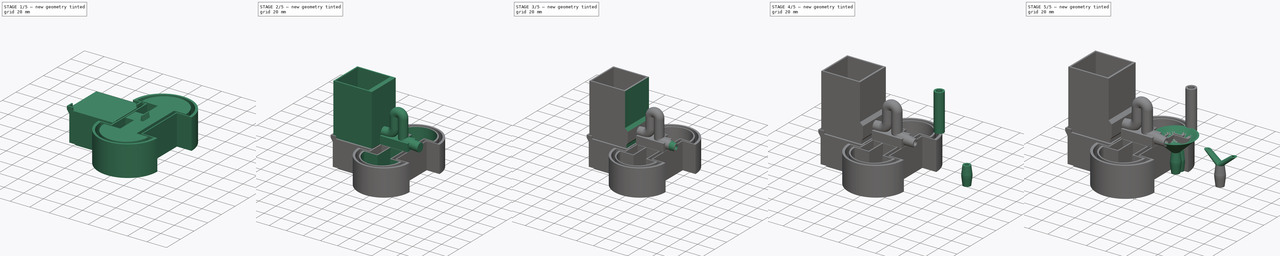
[diagram: build sequence overview — one tinted view per stage of 5, left to right]
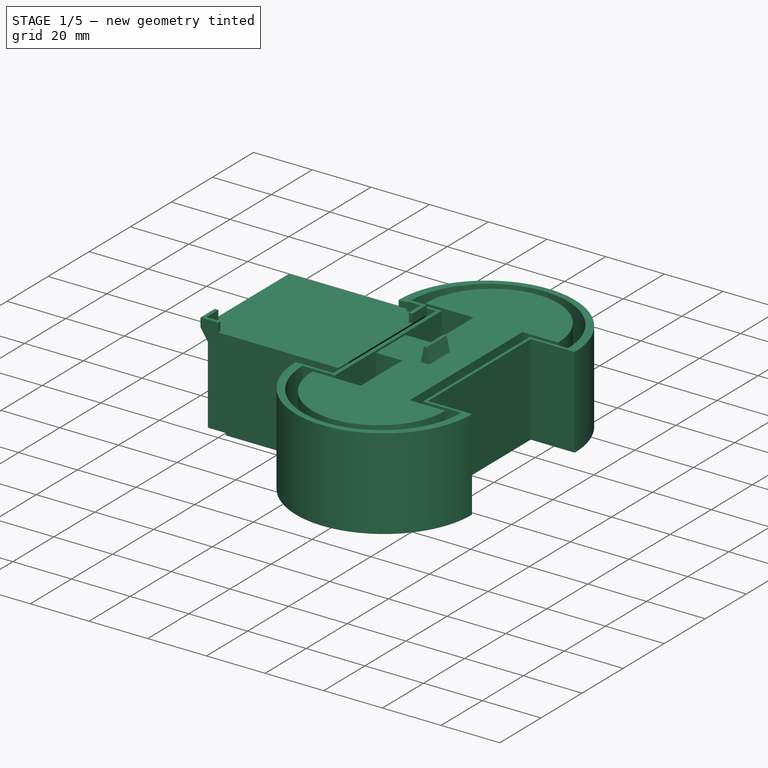
[diagram: stage 1 of 5 — iso view after this stage's code; geometry added in this stage tinted green]
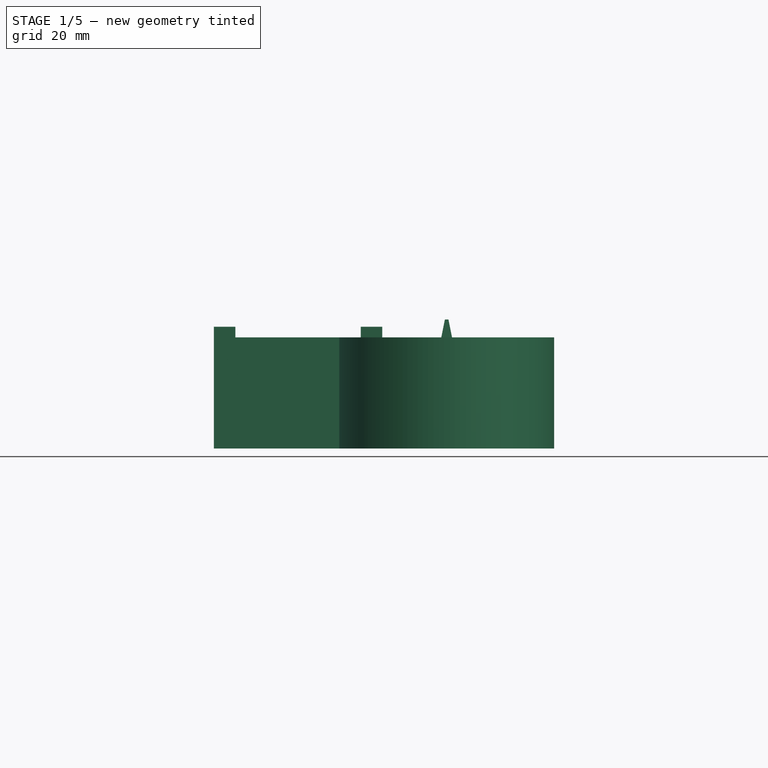
[diagram: stage 1 of 5 — front view after this stage's code; geometry added in this stage tinted green]
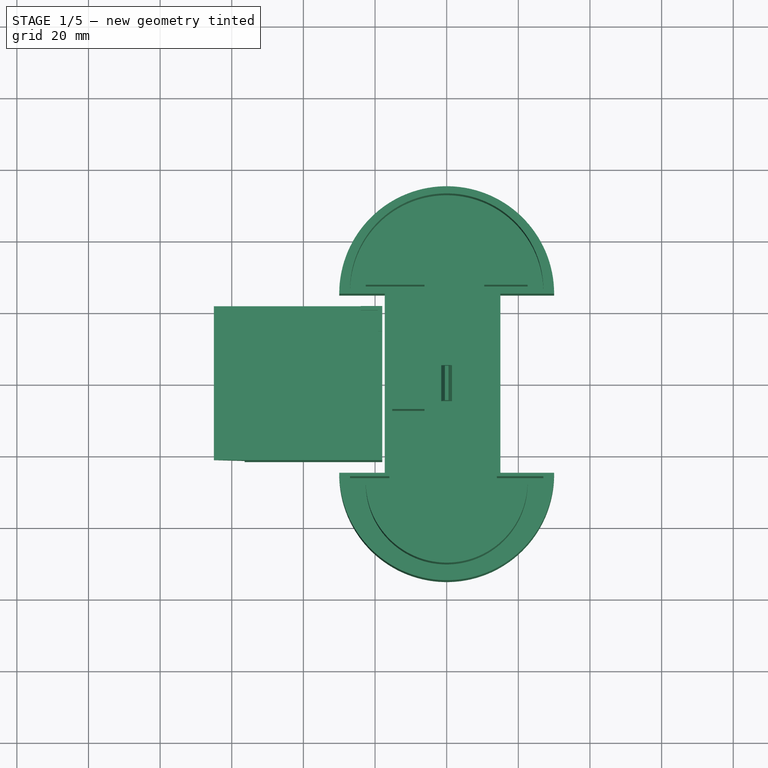
[diagram: stage 1 of 5 — top view after this stage's code; geometry added in this stage tinted green]
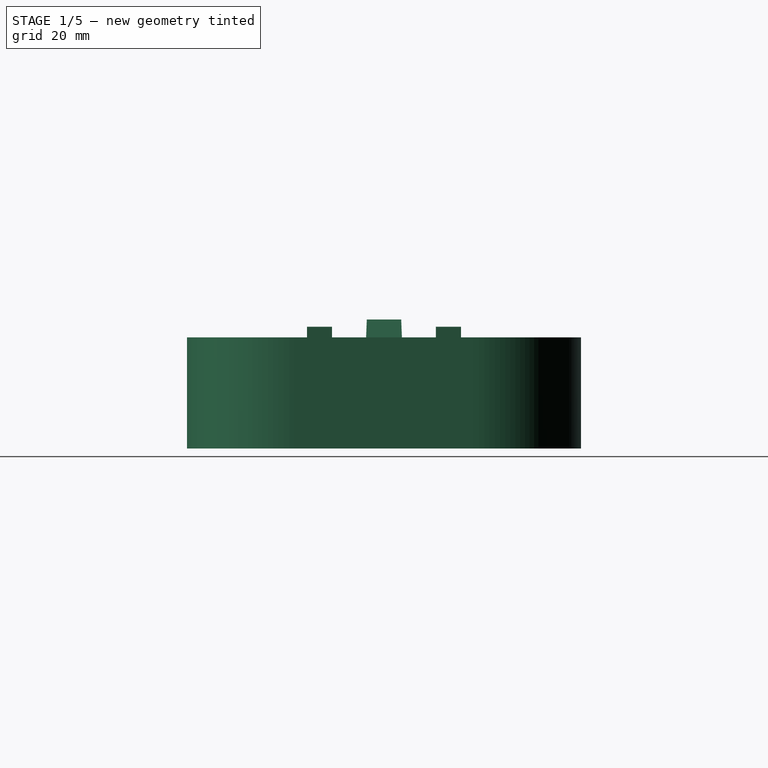
[diagram: stage 1 of 5 — right view after this stage's code; geometry added in this stage tinted green]
FCSTD DOCUMENT  (FreeCAD 0.19R23756 (Git))
Label: 3d-printable-neural-network-puzzle
License: Creative Commons Attribution-ShareAlike
LicenseURL: http://creativecommons.org/licenses/by-sa/4.0/
objects: Sketcher::SketchObject×55, TechDraw::DrawViewPart×12, PartDesign::SubtractivePipe×11, PartDesign::Pad×10, PartDesign::Body×10, PartDesign::SubtractiveLoft×7, PartDesign::AdditiveLoft×6, PartDesign::Chamfer×4, PartDesign::FeatureBase×3, PartDesign::AdditivePipe×2, TechDraw::DrawSVGTemplate×2, TechDraw::DrawPage×2, PartDesign::ShapeBinder×1, PartDesign::Hole×1
note: 151 computed .brp shape members not serialized (recipe doc carries the construction recipe); baked Part::Feature solids carry a one-line shape summary decoded from their .brp

FEATURE [PartDesign::Body] Body  label="Axon hillock"
  Group = -> [Sketch002,Sketch,Sketch006,Sketch009,Pad,AdditivePipe,Chamfer,Chamfer001,SubtractivePipe,Sketch014,Sketch015,SubtractiveLoft002]
  Origin = -> Origin
  Tip = -> SubtractiveLoft002
FEATURE [Sketcher::SketchObject] Sketch016  label="Hillock connection pad 1"
  FullyConstrained = true
  Placement = pos=(0,0,-0.2) rot=(0,0,1;0rad)
  Support = -> [XY_Plane003]
  sketch-geometry (4):
    g0: LineSegment StartX=-1.5 StartY=5 StartZ=0 EndX=1.5 EndY=5 EndZ=0
    g1: LineSegment StartX=1.5 StartY=5 StartZ=0 EndX=1.5 EndY=-5 EndZ=0
    g2: LineSegment StartX=1.5 StartY=-5 StartZ=0 EndX=-1.5 EndY=-5 EndZ=0
    g3: LineSegment StartX=-1.5 StartY=-5 StartZ=0 EndX=-1.5 EndY=5 EndZ=0
  constraints (10):
    c: Coincident(g0,g1)
    c: Coincident(g1,g2)
    c: Coincident(g2,g3)
    c: Coincident(g3,g0)
    c: Horizontal(g2)
    c: Vertical(g3)
    c: Symmetric(g0,g0,g-2)
    c: Symmetric(g1,g0,g-1)
    c: DistanceY(g1,g1) = 10
    c: DistanceX(g2,g2) = 3
FEATURE [Sketcher::SketchObject] Sketch017  label="Hillock connection pad 2"
  FullyConstrained = false
  Placement = pos=(0,0,4.8) rot=(0,0,1;0rad)
  Support = -> [XY_Plane003]
  sketch-geometry (4):
    g0: LineSegment StartX=-0.5 StartY=-4.8 StartZ=0 EndX=0.5 EndY=-4.8 EndZ=0
    g1: LineSegment StartX=0.5 StartY=-4.8 StartZ=0 EndX=0.5 EndY=4.8 EndZ=0
    g2: LineSegment StartX=0.5 StartY=4.8 StartZ=0 EndX=-0.5 EndY=4.8 EndZ=0
    g3: LineSegment StartX=-0.5 StartY=4.8 StartZ=0 EndX=-0.5 EndY=-4.8 EndZ=0
  constraints (10):
    c: Horizontal(g0)
    c: Vertical(g3)
    c: Symmetric(g1,g2,g-2)
    c: Symmetric(g1,g0,g-1)
    c: DistanceX(g0,g0) = 1
    c: DistanceY(g3,g3) = 9.6
    c: Coincident(g1,g2)
    c: Coincident(g3,g2)
    c: Coincident(g0,g3)
    c: Equal(g3,g1)
FEATURE [Sketcher::SketchObject] Sketch018  label="Container negative hillock"
  FullyConstrained = true
  MapMode = 5
  Placement = pos=(0,0,-0.2) rot=(1,0,0;3.14159rad)
  sketch-geometry (8):
    g0: LineSegment StartX=15 StartY=25 StartZ=0 EndX=15 EndY=-25 EndZ=0
    g1: LineSegment StartX=-17.3 StartY=-25 StartZ=0 EndX=-17.3 EndY=25 EndZ=0
    g2: ArcOfCircle CenterX=0 CenterY=-25 CenterZ=0 NormalX=0 NormalY=0 NormalZ=1 AngleXU=0 Radius=30 StartAngle=3.14159 EndAngle=6.28319
    g3: LineSegment StartX=-17.3 StartY=-25 StartZ=0 EndX=-30 EndY=-25 EndZ=0
    g4: LineSegment StartX=15 StartY=-25 StartZ=0 EndX=30 EndY=-25 EndZ=0
    g5: ArcOfCircle CenterX=0 CenterY=25 CenterZ=0 NormalX=0 NormalY=0 NormalZ=1 AngleXU=0 Radius=30 StartAngle=1.7456e-12 EndAngle=3.14159
    g6: LineSegment StartX=15 StartY=25 StartZ=0 EndX=30 EndY=25 EndZ=0
    g7: LineSegment StartX=-17.3 StartY=25 StartZ=0 EndX=-30 EndY=25 EndZ=0
  constraints (24):
    c: DistanceX(g1,g-1) = 17.3
    c: DistanceX(g-1,g0) = 15
    c: Symmetric(g0,g0,g-1)
    c: DistanceY(g0,g0) = 50
    c: Equal(g0,g1)
    c: Symmetric(g1,g1,g-1)
    c: PointOnObject(g2,g-2)
    c: Radius(g2) = 30
    c: Angle(g2) = 3.14159
    c: Coincident(g3,g1)
    c: Coincident(g3,g2)
    c: Perpendicular(g1,g3)
    c: Coincident(g4,g0)
    c: Coincident(g4,g2)
    c: Perpendicular(g0,g4)
    c: PointOnObject(g5,g-2)
    c: Radius(g5) = 30
    c: Angle(g5) = 3.14159
    c: Coincident(g6,g0)
    c: Coincident(g6,g5)
    c: Coincident(g7,g1)
    c: Coincident(g7,g5)
    c: Perpendicular(g0,g6)
    c: Perpendicular(g7,g1)
FEATURE [Sketcher::SketchObject] Sketch019  label="Hollow profile"
  FullyConstrained = true
  MapMode = 5
  Placement = pos=(0,0,-0.2) rot=(0,0,1;0rad)
  sketch-geometry (8):
    g0: LineSegment StartX=14 StartY=26 StartZ=0 EndX=14 EndY=-26 EndZ=0
    g1: LineSegment StartX=-16 StartY=-26 StartZ=0 EndX=-16 EndY=26 EndZ=0
    g2: ArcOfCircle CenterX=0 CenterY=26 CenterZ=0 NormalX=0 NormalY=0 NormalZ=1 AngleXU=0 Radius=27 StartAngle=0 EndAngle=3.14159
    g3: LineSegment StartX=-27 StartY=26 StartZ=0 EndX=-16 EndY=26 EndZ=0
    g4: LineSegment StartX=14 StartY=26 StartZ=0 EndX=27 EndY=26 EndZ=0
    g5: ArcOfCircle CenterX=0 CenterY=-26 CenterZ=0 NormalX=0 NormalY=0 NormalZ=1 AngleXU=0 Radius=27 StartAngle=3.14159 EndAngle=6.28319
    g6: LineSegment StartX=14 StartY=-26 StartZ=0 EndX=27 EndY=-26 EndZ=0
    g7: LineSegment StartX=-16 StartY=-26 StartZ=0 EndX=-27 EndY=-26 EndZ=0
  constraints (24):
    c: DistanceY(g1,g1) = 52
    c: DistanceX(g-1,g0) = 14
    c: DistanceX(g1,g-1) = 16
    c: Symmetric(g0,g0,g-1)
    c: Symmetric(g1,g1,g-1)
    c: Equal(g1,g0)
    c: PointOnObject(g2,g-2)
    c: Coincident(g3,g2)
    c: Coincident(g3,g1)
    c: Horizontal(g3)
    c: Coincident(g4,g0)
    c: Coincident(g4,g2)
    c: Perpendicular(g0,g4)
    c: Radius(g2) = 27
    c: Angle(g2) = 3.14159
    c: PointOnObject(g5,g-2)
    c: Coincident(g6,g0)
    c: Coincident(g6,g5)
    c: Horizontal(g6)
    c: Coincident(g7,g1)
    c: Coincident(g7,g5)
    c: Perpendicular(g7,g1)
    c: Angle(g5) = 3.14159
    c: Radius(g5) = 27
FEATURE [Sketcher::SketchObject] Sketch020  label="Hollow path"
  FullyConstrained = true
  MapMode = 5
  Placement = pos=(0,0,0) rot=(1,0,0;1.5708rad)
  Support = -> [XZ_Plane002]
  sketch-geometry (1):
    g0: LineSegment StartX=0 StartY=-0.2 StartZ=0 EndX=0 EndY=-30.2 EndZ=0
  constraints (4):
    c: PointOnObject(g0,g-2)
    c: Vertical(g0)
    c: DistanceY(g0,g-1) = 0.2
    c: DistanceY(g0,g0) = 30
FEATURE [PartDesign::Pad] Pad003  label="Container pad"
  Direction = (1,1,1)
  Length = 31
  Length2 = 100
  Placement = pos=(0,0,-0.2) rot=(1,0,0;3.14159rad)
  Profile = -> Sketch018
  Type = 0
FEATURE [PartDesign::SubtractivePipe] SubtractivePipe001  label="Hollow container sweep"
  AuxilleryCurvelinear = true
  AuxillerySpineTangent = false
  BaseFeature = -> Pad003
  Binormal = (0,0,0)
  Mode = 0
  Placement = pos=(0,0,-0.2) rot=(1,0,0;3.14159rad)
  Profile = -> Sketch019
  Spine = -> Sketch020
  SpineTangent = false
  Transformation = 0
  Transition = 0
FEATURE [Sketcher::SketchObject] Sketch022  label="Float path"
  FullyConstrained = true
  MapMode = 5
  Placement = pos=(0,0,0) rot=(1,0,0;1.5708rad)
  sketch-geometry (1):
    g0: LineSegment StartX=0 StartY=-0.2 StartZ=0 EndX=0 EndY=-29.8 EndZ=0
  constraints (4):
    c: PointOnObject(g0,g-2)
    c: Vertical(g0)
    c: DistanceY(g0,g-1) = 0.2
    c: DistanceY(g0,g0) = 29.6
FEATURE [PartDesign::AdditiveLoft] AdditiveLoft  label="Connection to hillock"
  Closed = false
  Profile = -> Sketch016
  Ruled = false
  Sections = -> [Sketch017]
FEATURE [Sketcher::SketchObject] Sketch023  label="Float profile"
  FullyConstrained = true
  MapMode = 5
  Placement = pos=(0,0,-0.2) rot=(1,0,0;3.14159rad)
  Support = -> [AdditiveLoft]
  sketch-geometry (14):
    g0: LineSegment StartX=10.5 StartY=27.5 StartZ=0 EndX=10.5 EndY=-27.5 EndZ=0
    g1: LineSegment StartX=-15.2 StartY=7.2 StartZ=0 EndX=-15.2 EndY=-7.2 EndZ=0
    g2: LineSegment StartX=-15.2 StartY=-7.2 StartZ=0 EndX=-6.2 EndY=-7.2 EndZ=0
    g3: LineSegment StartX=-6.2 StartY=-7.2 StartZ=0 EndX=-6.2 EndY=-27.5 EndZ=0
    g4: LineSegment StartX=-10.5 StartY=-27.5 StartZ=0 EndX=-6.2 EndY=-27.5 EndZ=0
    g5: LineSegment StartX=-15.2 StartY=7.2 StartZ=0 EndX=-6.2 EndY=7.2 EndZ=0
    g6: LineSegment StartX=-6.2 StartY=7.2 StartZ=0 EndX=-6.2 EndY=27.5 EndZ=0
    g7: LineSegment StartX=-6.2 StartY=27.5 StartZ=0 EndX=-10.5 EndY=27.5 EndZ=0
    g8: ArcOfCircle CenterX=0 CenterY=27.5 CenterZ=0 NormalX=0 NormalY=0 NormalZ=1 AngleXU=0 Radius=22.6 StartAngle=1e-16 EndAngle=3.14159
    g9: LineSegment StartX=-10.5 StartY=27.5 StartZ=0 EndX=-22.6 EndY=27.5 EndZ=0
    g10: LineSegment StartX=10.5 StartY=27.5 StartZ=0 EndX=22.6 EndY=27.5 EndZ=0
    g11: ArcOfCircle CenterX=0 CenterY=-27.5 CenterZ=0 NormalX=0 NormalY=0 NormalZ=1 AngleXU=0 Radius=22.6 StartAngle=3.14159 EndAngle=6.28319
    g12: LineSegment StartX=10.5 StartY=-27.5 StartZ=0 EndX=22.6 EndY=-27.5 EndZ=0
    g13: LineSegment StartX=-10.5 StartY=-27.5 StartZ=0 EndX=-22.6 EndY=-27.5 EndZ=0
  constraints (42):
    c: DistanceX(g1,g-1) = 15.2
    c: Symmetric(g0,g0,g-1)
    c: DistanceY(g1,g1) = 14.4
    c: DistanceY(g0,g0) = 55
    c: Horizontal(g2)
    c: Coincident(g1,g2)
    c: Coincident(g3,g2)
    c: Vertical(g3)
    c: Coincident(g4,g3)
    c: Horizontal(g4)
    c: Coincident(g5,g1)
    c: Coincident(g6,g5)
    c: Vertical(g6)
    c: Horizontal(g7)
    c: Coincident(g7,g6)
    c: Perpendicular(g6,g5)
    c: DistanceX(g5,g5) = 9
    c: Equal(g5,g2)
    c: DistanceX(g-1,g0) = 10.5
    c: DistanceX(g7,g-1) = 10.5
    c: DistanceY(g6,g0) = 0
    c: DistanceY(g0,g3) = 0
    c: Equal(g7,g4)
    c: Symmetric(g1,g1,g-1)
    c: PointOnObject(g8,g-2)
    c: Coincident(g9,g7)
    c: Coincident(g9,g8)
    c: Horizontal(g9)
    c: Coincident(g10,g0)
    c: Coincident(g10,g8)
    c: Horizontal(g10)
    c: Angle(g8) = 3.14159
    c: Radius(g8) = 22.6
    c: PointOnObject(g11,g-2)
    c: PointOnObject(g11,g4)
    c: Coincident(g12,g0)
    c: Coincident(g12,g11)
    c: Horizontal(g12)
    c: Coincident(g13,g4)
    c: Coincident(g13,g11)
    c: Equal(g8,g11)
    c: Equal(g9,g13)
FEATURE [PartDesign::AdditivePipe] AdditivePipe001  label="Float body"
  AuxilleryCurvelinear = true
  AuxillerySpineTangent = false
  BaseFeature = -> AdditiveLoft
  Binormal = (0,0,0)
  Mode = 0
  Profile = -> Sketch023
  Spine = -> Sketch022
  SpineTangent = false
  Transformation = 0
  Transition = 0
FEATURE [Sketcher::SketchObject] Sketch029  label="Soma support loft 2"
  FullyConstrained = true
  Placement = pos=(0,0,-0.2) rot=(0,0,1;0rad)
  Support = -> [XY_Plane004]
  sketch-geometry (4):
    g0: LineSegment StartX=-65 StartY=21.5 StartZ=0 EndX=-18 EndY=21.5 EndZ=0
    g1: LineSegment StartX=-18 StartY=21.5 StartZ=0 EndX=-18 EndY=-21.5 EndZ=0
    g2: LineSegment StartX=-18 StartY=-21.5 StartZ=0 EndX=-65 EndY=-21.5 EndZ=0
    g3: LineSegment StartX=-65 StartY=-21.5 StartZ=0 EndX=-65 EndY=21.5 EndZ=0
  constraints (11):
    c: Coincident(g0,g1)
    c: Coincident(g1,g2)
    c: Coincident(g2,g3)
    c: Coincident(g3,g0)
    c: Horizontal(g0)
    c: Horizontal(g2)
    c: Vertical(g1)
    c: Symmetric(g0,g2,g-1)
    c: DistanceY(g3,g3) = 43
    c: DistanceX(g2,g2) = 47
    c: DistanceX(g1,g-1) = 18
FEATURE [Sketcher::SketchObject] Sketch031  label="Soma support loft 004"
  FullyConstrained = true
  MapMode = 5
  Placement = pos=(0,0,-31.2) rot=(1,0,0;3.14159rad)
  sketch-geometry (4):
    g0: LineSegment StartX=-38 StartY=21.5 StartZ=0 EndX=-45 EndY=21.5 EndZ=0
    g1: LineSegment StartX=-45 StartY=21.5 StartZ=0 EndX=-45 EndY=-21.5 EndZ=0
    g2: LineSegment StartX=-45 StartY=-21.5 StartZ=0 EndX=-38 EndY=-21.5 EndZ=0
    g3: LineSegment StartX=-38 StartY=-21.5 StartZ=0 EndX=-38 EndY=21.5 EndZ=0
  constraints (11):
    c: Coincident(g0,g1)
    c: Coincident(g1,g2)
    c: Coincident(g2,g3)
    c: Coincident(g3,g0)
    c: Horizontal(g0)
    c: Horizontal(g2)
    c: Vertical(g3)
    c: DistanceX(g0,g-1) = 38
    c: DistanceX(g0,g0) = 7
    c: Symmetric(g0,g1,g-1)
    c: DistanceY(g1,g1) = 43
FEATURE [PartDesign::AdditiveLoft] AdditiveLoft001
  Closed = false
  Placement = pos=(0,0,-31.2) rot=(1,0,0;3.14159rad)
  Profile = -> Sketch031
  Ruled = false
  Sections = -> [Sketch029]
FEATURE [Sketcher::SketchObject] Sketch033  label="Soma base hollow profile"
  FullyConstrained = true
  MapMode = 5
  Placement = pos=(0,-20,0) rot=(1,0,0;1.5708rad)
  sketch-geometry (4):
    g0: LineSegment StartX=-17.8 StartY=0 StartZ=0 EndX=-19.3 EndY=0 EndZ=0
    g1: LineSegment StartX=-19.3 StartY=0 StartZ=0 EndX=-19.3 EndY=3.5 EndZ=0
    g2: LineSegment StartX=-19.3 StartY=3.5 StartZ=0 EndX=-17.8 EndY=5.5 EndZ=0
    g3: LineSegment StartX=-17.8 StartY=5.5 StartZ=0 EndX=-17.8 EndY=0 EndZ=0
  constraints (12):
    c: PointOnObject(g0,g-1)
    c: PointOnObject(g0,g-1)
    c: Coincident(g0,g1)
    c: Vertical(g1)
    c: Coincident(g1,g2)
    c: Coincident(g2,g3)
    c: Coincident(g3,g0)
    c: Vertical(g3)
    c: DistanceY(g3,g3) = 5.5
    c: DistanceX(g0,g-1) = 17.8
    c: DistanceY(g1,g1) = 3.5
    c: DistanceX(g0,g0) = 1.5
FEATURE [Sketcher::SketchObject] Sketch034  label="Soma base hollow path"
  FullyConstrained = true
  MapMode = 5
  Placement = pos=(-17.8,0,0) rot=(0.57735,0.57735,0.57735;2.0944rad)
  sketch-geometry (1):
    g0: LineSegment StartX=-20 StartY=4 StartZ=0 EndX=20 EndY=4 EndZ=0
  constraints (3):
    c: DistanceX(g0,g0) = 40
    c: Symmetric(g0,g0,g-2)
    c: DistanceY(g-1,g0) = 4
FEATURE [Sketcher::SketchObject] Sketch035  label="Soma support klickin 1"
  FullyConstrained = true
  MapMode = 5
  Placement = pos=(0,-1.3e-14,-0.2) rot=(0,0,1;0rad)
  sketch-geometry (6):
    g0: LineSegment StartX=-24 StartY=21.5 StartZ=0 EndX=-24 EndY=20.3 EndZ=0
    g1: LineSegment StartX=-24 StartY=20.3 StartZ=0 EndX=-19.2 EndY=20.3 EndZ=0
    g2: LineSegment StartX=-19.2 StartY=20.3 StartZ=0 EndX=-19.2 EndY=14.5 EndZ=0
    g3: LineSegment StartX=-19.2 StartY=14.5 StartZ=0 EndX=-18 EndY=14.5 EndZ=0
    g4: LineSegment StartX=-18 StartY=14.5 StartZ=0 EndX=-18 EndY=21.5 EndZ=0
    g5: LineSegment StartX=-18 StartY=21.5 StartZ=0 EndX=-24 EndY=21.5 EndZ=0
  constraints (18):
    c: Vertical(g0)
    c: Coincident(g0,g1)
    c: Horizontal(g1)
    c: Coincident(g1,g2)
    c: Coincident(g2,g3)
    c: Coincident(g3,g4)
    c: Vertical(g4)
    c: Coincident(g4,g5)
    c: Coincident(g5,g0)
    c: Horizontal(g5)
    c: DistanceX(g5,g5) = 6
    c: DistanceY(g4,g4) = 7
    c: DistanceY(g0,g0) = 1.2
    c: DistanceX(g3,g3) = 1.2
    c: Perpendicular(g2,g1)
    c: DistanceY(g2,g2) = 5.8
    c: DistanceX(g4,g-1) = 18
    c: DistanceY(g-1,g3) = 14.5
FEATURE [PartDesign::Pad] Pad006  label="soma support pad"
  BaseFeature = -> AdditiveLoft001
  Direction = (1,1,1)
  Length = 31
  Length2 = 100
  Placement = pos=(0,0,-31.2) rot=(1,0,0;3.14159rad)
  Profile = -> Sketch027
  Reversed = true
  Type = 0
FEATURE [PartDesign::Pad] Pad007
  BaseFeature = -> Pad006
  Direction = (1,1,1)
  Length = 3
  Length2 = 100
  Placement = pos=(0,0,-31.2) rot=(1,0,0;3.14159rad)
  Profile = -> Sketch035
  Type = 0
FEATURE [Sketcher::SketchObject] Sketch042  label="Float hollow profile 1"
  FullyConstrained = true
  MapMode = 5
  Placement = pos=(0,0,-0.2) rot=(0,0,1;0rad)
  sketch-geometry (8):
    g0: LineSegment StartX=-5 StartY=-7 StartZ=0 EndX=-5 EndY=-28.6 EndZ=0
    g1: LineSegment StartX=9.4 StartY=-28.6 StartZ=0 EndX=9.4 EndY=-7 EndZ=0
    g2: LineSegment StartX=9.4 StartY=-7 StartZ=0 EndX=-5 EndY=-7 EndZ=0
    g3: ArcOfCircle CenterX=0 CenterY=-28.6 CenterZ=0 NormalX=0 NormalY=0 NormalZ=1 AngleXU=0 Radius=20.4 StartAngle=3.14159 EndAngle=6.28319
    g4: LineSegment StartX=20.4 StartY=-28.6 StartZ=0 EndX=13.4 EndY=-28.6 EndZ=0
    g5: LineSegment StartX=-20.4 StartY=-28.6 StartZ=0 EndX=-13.4 EndY=-28.6 EndZ=0
    g6: LineSegment StartX=-13.4 StartY=-28.6 StartZ=0 EndX=-5 EndY=-28.6 EndZ=0
    g7: LineSegment StartX=9.4 StartY=-28.6 StartZ=0 EndX=13.4 EndY=-28.6 EndZ=0
  constraints (23):
    c: Vertical(g0)
    c: Vertical(g1)
    c: Coincident(g1,g2)
    c: Horizontal(g2)
    c: DistanceY(g0,g0) = 21.6
    c: Coincident(g0,g2)
    c: DistanceX(g-1,g1) = 9.4
    c: DistanceX(g0,g-1) = 5
    c: DistanceY(g1,g-1) = 7
    c: Equal(g0,g1)
    c: Angle(g3) = 3.14159
    c: Radius(g3) = 20.4
    c: Coincident(g4,g3)
    c: Horizontal(g4)
    c: Coincident(g5,g3)
    c: Horizontal(g5)
    c: Equal(g5,g4)
    c: Coincident(g6,g0)
    c: Coincident(g7,g1)
    c: DistanceX(g5,g5) = 7
    c: Tangent(g5,g6) = -1.5708
    c: DistanceX(g-1,g3) = 0
    c: Tangent(g7,g4) = 1.5708
FEATURE [PartDesign::SubtractiveLoft] SubtractiveLoft005  label="Float hollow loft"
  BaseFeature = -> AdditivePipe001
  Closed = false
  Profile = -> Sketch025
  Ruled = false
  Sections = -> [Sketch024]
FEATURE [PartDesign::Body] Body002  label="Soma negative load"
  Group = -> [Sketch018,Sketch019,Sketch020,Pad003,SubtractivePipe001,SubtractivePipe009,ReferenceSketch043,SubtractivePipe010,CopySketch043,Sketch052,Pad012]
  Origin = -> Origin002
  Tip = -> Pad012
FEATURE [TechDraw::DrawViewPart] View002
  CoarseView = false
  Direction = (0.577,-0.577,0.577)
  Focus = 100
  HardHidden = false
  IsoCount = 0
  IsoHidden = false
  IsoVisible = false
  LockPosition = false
  Perspective = false
  Rotation = 0
  ScaleType = 0
  SeamHidden = false
  SeamVisible = true
  SmoothHidden = false
  SmoothVisible = true
  Source = -> [Body002,Body003]
  X = 197.191
  XDirection = (0.707,0.707,0)
  Y = 88.1073
FEATURE [PartDesign::Pad] Pad013
  BaseFeature = -> Pad007
  Direction = (1,1,1)
  Length = 3
  Length2 = 100
  Placement = pos=(0,0,-31.2) rot=(1,0,0;3.14159rad)
  Profile = -> Sketch032
  Type = 0
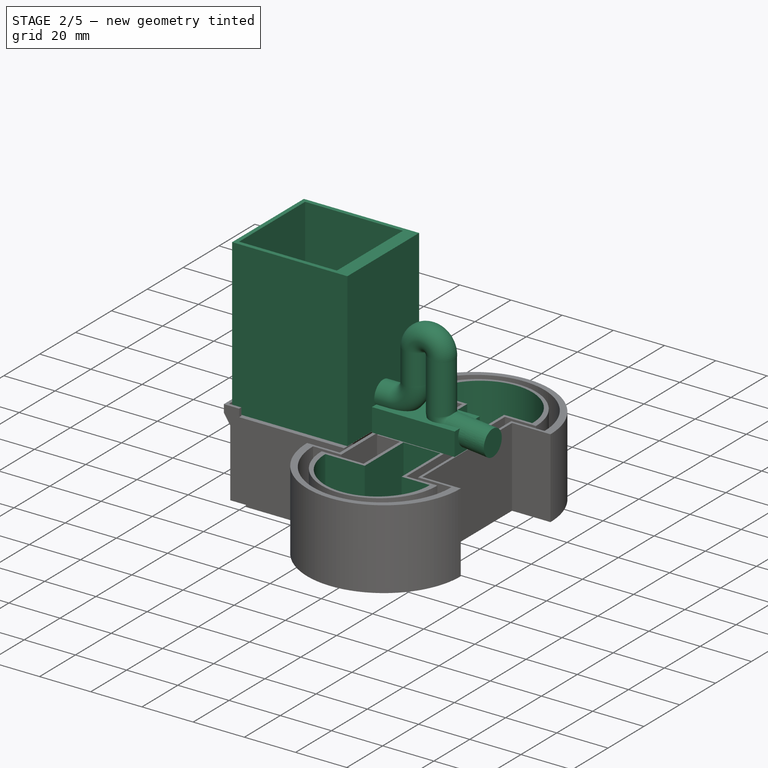
[diagram: stage 2 of 5 — iso view after this stage's code; geometry added in this stage tinted green]
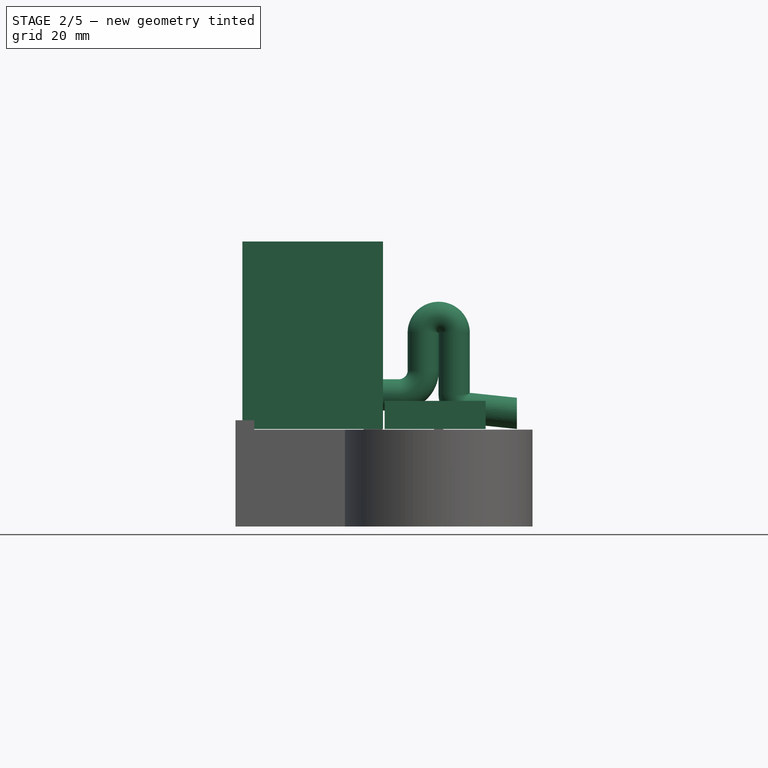
[diagram: stage 2 of 5 — front view after this stage's code; geometry added in this stage tinted green]
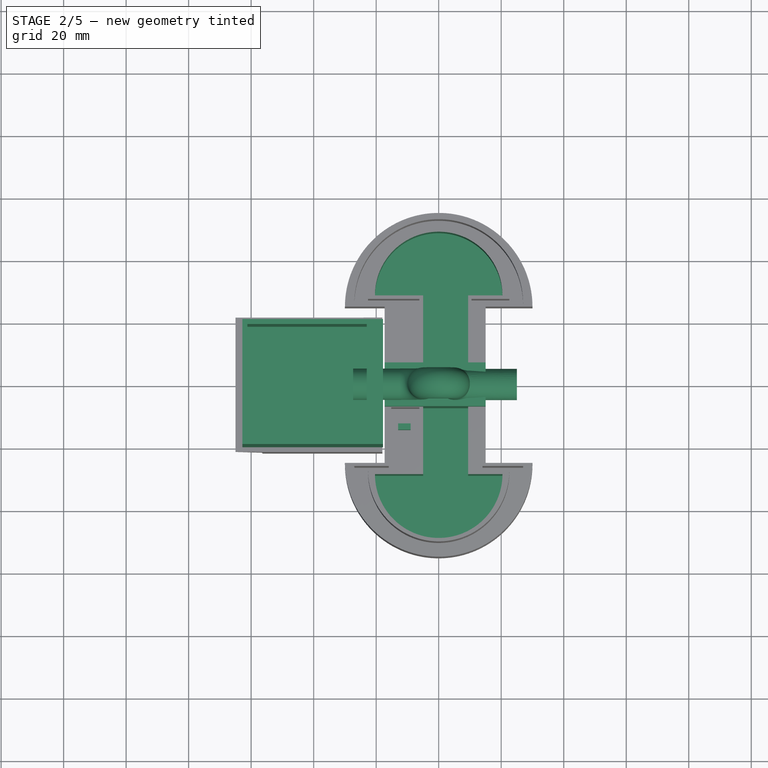
[diagram: stage 2 of 5 — top view after this stage's code; geometry added in this stage tinted green]
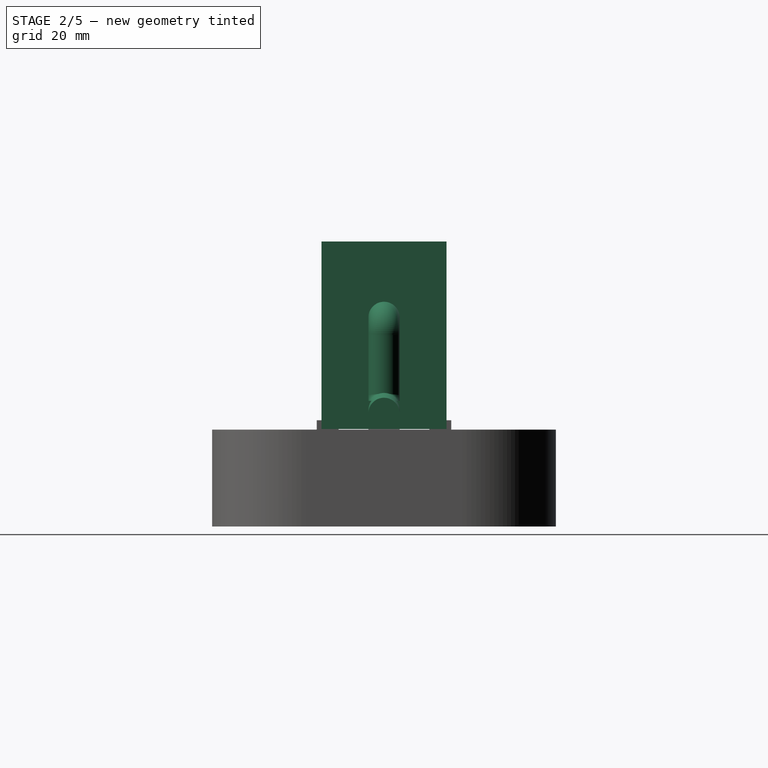
[diagram: stage 2 of 5 — right view after this stage's code; geometry added in this stage tinted green]
FEATURE [Sketcher::SketchObject] Sketch  label="Drain line"
  FullyConstrained = true
  MapMode = 5
  Placement = pos=(0,0,0) rot=(1,0,0;1.5708rad)
  Support = -> [XZ_Plane]
  sketch-geometry (7):
    g0: LineSegment StartX=-5 StartY=18.76 StartZ=0 EndX=-5 EndY=30.76 EndZ=0
    g1: ArcOfCircle CenterX=-4e-16 CenterY=30.76 CenterZ=0 NormalX=0 NormalY=0 NormalZ=1 AngleXU=0 Radius=5 StartAngle=0 EndAngle=3.14159
    g2: LineSegment StartX=5 StartY=30.76 StartZ=0 EndX=5 EndY=11.2566 EndZ=0
    g3: ArcOfCircle CenterX=-12.76 CenterY=18.76 CenterZ=0 NormalX=0 NormalY=0 NormalZ=1 AngleXU=0 Radius=7.76 StartAngle=4.71239 EndAngle=6.28319
    g4: ArcOfCircle CenterX=9.62 CenterY=11.2566 CenterZ=0 NormalX=0 NormalY=0 NormalZ=1 AngleXU=0 Radius=4.62 StartAngle=3.14159 EndAngle=4.71239
    g5: LineSegment StartX=9.62 StartY=6.63656 StartZ=0 EndX=24.62 EndY=5.06 EndZ=0
    g6: LineSegment StartX=-12.76 StartY=11 StartZ=0 EndX=-27.76 EndY=11 EndZ=0
  constraints (19):
    c: Tangent(g3,g0) = -1.5708
    c: Angle(g3) = 1.5708
    c: Tangent(g4,g2) = -1.5708
    c: Angle(g4) = 1.5708
    c: Coincident(g4,g5)
    c: Angle(g5) = -0.10472
    c: DistanceX(g5,g5) = 15
    c: DistanceX(g6,g6) = 15
    c: Tangent(g6,g3) = 1.5708
    c: Parallel(g0,g-2)
    c: DistanceX(g-2,g4) = 9.62
    c: Tangent(g1,g0) = 1.5708
    c: DistanceX(g-2,g3) = -12.76
    c: Tangent(g1,g2) = 1.5708
    c: DistanceY(g0,g0) = 12
    c: DistanceY(g-1,g6) = 11
    c: DistanceX(g0,g1) = 10
    c: Symmetric(g1,g0,g-2)
    c: DistanceY(g-1,g5) = 5.06
FEATURE [Sketcher::SketchObject] Sketch002  label="Siphon base"
  FullyConstrained = false
  MapMode = 5
  Support = -> [XY_Plane]
  sketch-geometry (4):
    g0: LineSegment StartX=-17.3 StartY=7 StartZ=0 EndX=15 EndY=7 EndZ=0
    g1: LineSegment StartX=15 StartY=7 StartZ=0 EndX=15 EndY=-7 EndZ=0
    g2: LineSegment StartX=15 StartY=-7 StartZ=0 EndX=-17.3 EndY=-7 EndZ=0
    g3: LineSegment StartX=-17.3 StartY=-7 StartZ=0 EndX=-17.3 EndY=7 EndZ=0
  constraints (10):
    c: Coincident(g0,g1)
    c: Coincident(g1,g2)
    c: Coincident(g2,g3)
    c: Coincident(g3,g0)
    c: Horizontal(g0)
    c: Vertical(g3)
    c: Symmetric(g0,g1,g-1)
    c: DistanceY(g1,g1) = 14
    c: DistanceX(g-1,g1) = 15
    c: DistanceX(g2,g-1) = 17.3
FEATURE [Sketcher::SketchObject] Sketch006  label="Drain additative profile"
  FullyConstrained = true
  MapMode = 5
  Placement = pos=(25,0,0) rot=(0.57735,0.57735,0.57735;2.0944rad)
  sketch-geometry (1):
    g0: Circle CenterX=0 CenterY=5 CenterZ=0 NormalX=0 NormalY=0 NormalZ=1 AngleXU=0 Radius=5
  constraints (3):
    c: Radius(g0) = 5
    c: DistanceX(g-2,g0) = 0
    c: DistanceY(g-1,g0) = 5
FEATURE [Sketcher::SketchObject] Sketch009  label="Drain subtractive profile"
  FullyConstrained = true
  MapMode = 5
  Placement = pos=(25,0,0) rot=(0.57735,0.57735,0.57735;2.0944rad)
  sketch-geometry (1):
    g0: Circle CenterX=0 CenterY=5 CenterZ=0 NormalX=0 NormalY=0 NormalZ=1 AngleXU=0 Radius=2.5
  constraints (3):
    c: Radius(g0) = 2.5
    c: DistanceX(g-2,g0) = 0
    c: DistanceY(g-1,g0) = 5
FEATURE [PartDesign::Pad] Pad
  Direction = (1,1,1)
  Length = 9
  Length2 = 100
  Profile = -> Sketch002
  Type = 0
FEATURE [PartDesign::AdditivePipe] AdditivePipe
  AuxilleryCurvelinear = true
  AuxillerySpineTangent = false
  BaseFeature = -> Pad
  Binormal = (0,0,0)
  Mode = 0
  Profile = -> Sketch006
  Spine = -> Sketch
  SpineTangent = false
  Transformation = 0
  Transition = 0
FEATURE [Sketcher::SketchObject] Sketch024  label="Float hollow loft 1"
  FullyConstrained = true
  Placement = pos=(-15.2,0,-30) rot=(0.57735,-0.57735,-0.57735;0rad)
  Support = -> [AdditivePipe001]
  sketch-geometry (4):
    g0: LineSegment StartX=-1.5 StartY=6 StartZ=0 EndX=28.5 EndY=6 EndZ=0
    g1: LineSegment StartX=28.5 StartY=6 StartZ=0 EndX=28.5 EndY=-6 EndZ=0
    g2: LineSegment StartX=28.5 StartY=-6 StartZ=0 EndX=-1.5 EndY=-6 EndZ=0
    g3: LineSegment StartX=-1.5 StartY=-6 StartZ=0 EndX=-1.5 EndY=6 EndZ=0
  constraints (11):
    c: Coincident(g0,g1)
    c: Coincident(g1,g2)
    c: Coincident(g2,g3)
    c: Coincident(g3,g0)
    c: Horizontal(g0)
    c: Horizontal(g2)
    c: Vertical(g3)
    c: Symmetric(g0,g1,g-1)
    c: DistanceY(g1,g1) = 12
    c: DistanceX(g0,g-1) = 1.5
    c: DistanceX(g0,g0) = 30
FEATURE [Sketcher::SketchObject] Sketch025  label="Flow hollow loft 2"
  FullyConstrained = true
  Placement = pos=(0,0,-2.2) rot=(0,0,1;0rad)
  Support = -> [AdditivePipe001]
  sketch-geometry (4):
    g0: LineSegment StartX=-14 StartY=0.5 StartZ=0 EndX=14 EndY=0.5 EndZ=0
    g1: LineSegment StartX=14 StartY=0.5 StartZ=0 EndX=14 EndY=-0.5 EndZ=0
    g2: LineSegment StartX=14 StartY=-0.5 StartZ=0 EndX=-14 EndY=-0.5 EndZ=0
    g3: LineSegment StartX=-14 StartY=-0.5 StartZ=0 EndX=-14 EndY=0.5 EndZ=0
  constraints (10):
    c: Coincident(g0,g1)
    c: Coincident(g1,g2)
    c: Coincident(g2,g3)
    c: Coincident(g3,g0)
    c: Horizontal(g2)
    c: Vertical(g3)
    c: Symmetric(g0,g0,g-2)
    c: DistanceX(g2,g2) = 28
    c: DistanceY(g1,g1) = 1
    c: Symmetric(g0,g1,g-1)
FEATURE [Sketcher::SketchObject] Sketch027  label="Soma support pad"
  FullyConstrained = true
  MapMode = 5
  Placement = pos=(0,0,-31.2) rot=(1,0,0;3.14159rad)
  sketch-geometry (16):
    g0: LineSegment StartX=-18 StartY=16.5 StartZ=0 EndX=-38 EndY=16.5 EndZ=0
    g1: LineSegment StartX=-38 StartY=16.5 StartZ=0 EndX=-38 EndY=-16.5 EndZ=0
    g2: LineSegment StartX=-38 StartY=-16.5 StartZ=0 EndX=-19.5 EndY=-16.5 EndZ=0
    g3: LineSegment StartX=-19.5 StartY=-16.5 StartZ=0 EndX=-19.5 EndY=-20.2 EndZ=0
    g4: LineSegment StartX=-65 StartY=-16.5 StartZ=0 EndX=-45 EndY=-16.5 EndZ=0
    g5: LineSegment StartX=-45 StartY=-16.5 StartZ=0 EndX=-45 EndY=16.5 EndZ=0
    g6: LineSegment StartX=-45 StartY=16.5 StartZ=0 EndX=-63.4 EndY=16.5 EndZ=0
    g7: LineSegment StartX=-63.4 StartY=16.5 StartZ=0 EndX=-63.4 EndY=20.2 EndZ=0
    g8: LineSegment StartX=-65 StartY=-21.5 StartZ=0 EndX=-65 EndY=-16.5 EndZ=0
    g9: LineSegment StartX=-18 StartY=16.5 StartZ=0 EndX=-18 EndY=21.5 EndZ=0
    g10: LineSegment StartX=-63.4 StartY=20.2 StartZ=0 EndX=-56.4 EndY=20.2 EndZ=0
    g11: LineSegment StartX=-56.4 StartY=20.2 StartZ=0 EndX=-56.4 EndY=21.5 EndZ=0
    g12: LineSegment StartX=-26.5 StartY=-21.5 StartZ=0 EndX=-26.5 EndY=-20.2 EndZ=0
    g13: LineSegment StartX=-26.5 StartY=-20.2 StartZ=0 EndX=-19.5 EndY=-20.2 EndZ=0
    g14: LineSegment StartX=-65 StartY=-21.5 StartZ=0 EndX=-26.5 EndY=-21.5 EndZ=0
    g15: LineSegment StartX=-18 StartY=21.5 StartZ=0 EndX=-56.4 EndY=21.5 EndZ=0
  constraints (46):
    c: Horizontal(g0)
    c: Coincident(g0,g1)
    c: Coincident(g1,g2)
    c: Coincident(g2,g3)
    c: Vertical(g3)
    c: Horizontal(g4)
    c: Coincident(g4,g5)
    c: Coincident(g5,g6)
    c: Horizontal(g6)
    c: Coincident(g6,g7)
    c: Symmetric(g4,g5,g-1)
    c: Equal(g5,g1)
    c: Equal(g7,g3)
    c: DistanceX(g5,g0) = 7
    c: DistanceY(g1,g1) = 33
    c: Vertical(g8)
    c: Coincident(g8,g4)
    c: Coincident(g0,g9)
    c: Vertical(g9)
    c: DistanceX(g3,g-1) = 19.5
    c: Symmetric(g0,g1,g-1)
    c: Horizontal(g10)
    c: Coincident(g10,g11)
    c: Vertical(g11)
    c: DistanceX(g10,g10) = 7
    c: DistanceY(g11,g11) = 1.3
    c: Coincident(g12,g13)
    c: Equal(g11,g12)
    c: Perpendicular(g12,g13)
    c: DistanceY(g9,g9) = 5
    c: Coincident(g7,g10)
    c: Equal(g9,g8)
    c: Equal(g0,g4)
    c: Coincident(g3,g13)
    c: Coincident(g14,g8)
    c: Coincident(g14,g12)
    c: Horizontal(g14)
    c: Perpendicular(g12,g14)
    c: Coincident(g15,g9)
    c: Coincident(g15,g11)
    c: Horizontal(g15)
    c: DistanceX(g6,g6) = 18.4
    c: Perpendicular(g7,g6)
    c: Equal(g10,g13)
    c: DistanceX(g0,g-1) = 18
    c: DistanceX(g8,g-1) = 65
FEATURE [Sketcher::SketchObject] Sketch028  label="Soma hollow path"
  FullyConstrained = true
  MapMode = 5
  Placement = pos=(0,0,0) rot=(1,0,0;1.5708rad)
  Support = -> [XZ_Plane001]
  sketch-geometry (1):
    g0: LineSegment StartX=-39 StartY=9 StartZ=0 EndX=-39 EndY=60 EndZ=0
  constraints (4):
    c: Vertical(g0)
    c: DistanceY(g0,g0) = 51
    c: DistanceX(g0,g-1) = 39
    c: DistanceY(g-1,g0) = 9
FEATURE [PartDesign::Pad] Pad005
  Direction = (1,1,1)
  Length = 60
  Length2 = 100
  Profile = -> Sketch010
  Type = 0
FEATURE [Sketcher::SketchObject] Sketch032  label="Soma support klickin 2"
  FullyConstrained = true
  MapMode = 5
  Placement = pos=(0,-5.3e-15,-0.2) rot=(0,0,1;0rad)
  Support = -> [Pad007]
  sketch-geometry (6):
    g0: LineSegment StartX=-65 StartY=-14.5 StartZ=0 EndX=-65 EndY=-21.5 EndZ=0
    g1: LineSegment StartX=-65 StartY=-21.5 StartZ=0 EndX=-59 EndY=-21.5 EndZ=0
    g2: LineSegment StartX=-59 StartY=-21.5 StartZ=0 EndX=-59 EndY=-20.3 EndZ=0
    g3: LineSegment StartX=-59 StartY=-20.3 StartZ=0 EndX=-63.8 EndY=-20.3 EndZ=0
    g4: LineSegment StartX=-63.8 StartY=-20.3 StartZ=0 EndX=-63.8 EndY=-14.5 EndZ=0
    g5: LineSegment StartX=-63.8 StartY=-14.5 StartZ=0 EndX=-65 EndY=-14.5 EndZ=0
  constraints (18):
    c: Vertical(g0)
    c: Coincident(g0,g1)
    c: Horizontal(g1)
    c: Coincident(g1,g2)
    c: Vertical(g2)
    c: Coincident(g2,g3)
    c: Horizontal(g3)
    c: Coincident(g3,g4)
    c: Vertical(g4)
    c: Coincident(g4,g5)
    c: Coincident(g5,g0)
    c: Horizontal(g5)
    c: DistanceY(g0,g0) = 7
    c: DistanceX(g1,g1) = 6
    c: DistanceY(g2,g2) = 1.2
    c: DistanceX(g5,g5) = 1.2
    c: DistanceX(g1,g-1) = 59
    c: DistanceY(g0,g-1) = 14.5
FEATURE [Sketcher::SketchObject] Sketch036  label="Soma subtractie wall profile"
  FullyConstrained = true
  MapMode = 5
  Placement = pos=(0,-20,0) rot=(1,0,0;1.5708rad)
  sketch-geometry (4):
    g0: LineSegment StartX=-21 StartY=60 StartZ=0 EndX=-21 EndY=21 EndZ=0
    g1: LineSegment StartX=-21 StartY=21 StartZ=0 EndX=-17.8 EndY=18 EndZ=0
    g2: LineSegment StartX=-17.8 StartY=18 StartZ=0 EndX=-17.8 EndY=60 EndZ=0
    g3: LineSegment StartX=-17.8 StartY=60 StartZ=0 EndX=-21 EndY=60 EndZ=0
  constraints (12):
    c: Vertical(g0)
    c: Coincident(g0,g1)
    c: Coincident(g1,g2)
    c: Vertical(g2)
    c: Coincident(g2,g3)
    c: Coincident(g3,g0)
    c: DistanceX(g1,g-1) = 17.8
    c: Perpendicular(g3,g2)
    c: DistanceY(g2,g2) = 42
    c: DistanceY(g0,g0) = 39
    c: DistanceX(g3,g3) = 3.2
    c: DistanceY(g-1,g0) = 60
FEATURE [Sketcher::SketchObject] Sketch037  label="Soma subtractive wall path"
  FullyConstrained = true
  MapMode = 5
  Placement = pos=(-17.8,0,0) rot=(0.57735,0.57735,0.57735;2.0944rad)
  sketch-geometry (1):
    g0: LineSegment StartX=-20 StartY=36 StartZ=0 EndX=20 EndY=36 EndZ=0
  constraints (3):
    c: Symmetric(g0,g0,g-2)
    c: DistanceX(g0,g0) = 40
    c: DistanceY(g-1,g0) = 36
FEATURE [PartDesign::SubtractivePipe] SubtractivePipe002
  AuxilleryCurvelinear = true
  AuxillerySpineTangent = false
  BaseFeature = -> Pad005
  Binormal = (0,0,0)
  Mode = 0
  Profile = -> Sketch012
  Spine = -> Sketch028
  SpineTangent = false
  Transformation = 0
  Transition = 0
FEATURE [PartDesign::Body] Body007  label="Soma output connection 2"
  BaseFeature = -> Body005
  Group = -> [Clone,Sketch049,Sketch050,Sketch051,AdditiveLoft002]
  Origin = -> Origin007
  Placement = pos=(19,0,0) rot=(0,0,1;0rad)
  Tip = -> AdditiveLoft002
FEATURE [PartDesign::ShapeBinder] ReferenceSketch043
  Placement = pos=(0,0,0) rot=(0.57735,-0.57735,-0.57735;2.0944rad)
  Support = -> [Sketch043]
  TraceSupport = false
FEATURE [PartDesign::SubtractivePipe] SubtractivePipe009
  AuxilleryCurvelinear = true
  AuxillerySpineTangent = false
  BaseFeature = -> SubtractivePipe001
  Binormal = (0,0,0)
  Mode = 0
  Placement = pos=(0,0,-0.2) rot=(1,0,0;3.14159rad)
  Profile = -> Sketch042
  Spine = -> ReferenceSketch043
  SpineTangent = false
  Transformation = 0
  Transition = 0
FEATURE [Sketcher::SketchObject] CopySketch043
  FullyConstrained = true
  Placement = pos=(0,0,0) rot=(0.57735,-0.57735,-0.57735;2.0944rad)
  sketch-geometry (1):
    g0: LineSegment StartX=-15 StartY=-0.2 StartZ=0 EndX=-15 EndY=-28.8 EndZ=0
  constraints (4):
    c: Vertical(g0)
    c: DistanceY(g0,g-1) = 0.2
    c: DistanceY(g0,g0) = 28.6
    c: DistanceX(g0,g-1) = 15
FEATURE [PartDesign::SubtractivePipe] SubtractivePipe010
  AuxilleryCurvelinear = true
  AuxillerySpineTangent = false
  BaseFeature = -> SubtractivePipe009
  Binormal = (0,0,0)
  Mode = 0
  Placement = pos=(0,0,-0.2) rot=(1,0,0;3.14159rad)
  Profile = -> Sketch042
  Spine = -> CopySketch043
  SpineTangent = false
  Transformation = 0
  Transition = 0
FEATURE [PartDesign::SubtractivePipe] SubtractivePipe011
  AuxilleryCurvelinear = true
  AuxillerySpineTangent = false
  BaseFeature = -> SubtractiveLoft005
  Binormal = (0,0,0)
  Mode = 0
  Profile = -> Sketch042
  Spine = -> Sketch043
  SpineTangent = false
  Transformation = 0
  Transition = 0
FEATURE [PartDesign::SubtractivePipe] SubtractivePipe012
  AuxilleryCurvelinear = true
  AuxillerySpineTangent = false
  BaseFeature = -> SubtractivePipe011
  Binormal = (0,0,0)
  Mode = 0
  Profile = -> Sketch044
  Spine = -> Sketch043
  SpineTangent = false
  Transformation = 0
  Transition = 0
FEATURE [PartDesign::Body] Body003  label="Axon hillock float"
  Group = -> [Sketch022,Sketch016,Sketch017,AdditiveLoft,Sketch023,AdditivePipe001,Sketch024,Sketch025,SubtractiveLoft005,Sketch042,Sketch043,Sketch044,SubtractivePipe011,SubtractivePipe012]
  Origin = -> Origin003
  Tip = -> SubtractivePipe012
FEATURE [Sketcher::SketchObject] Sketch052
  FullyConstrained = true
  MapMode = 5
  Placement = pos=(0,4.2e-15,-30.2) rot=(0,0,1;0rad)
  Support = -> [SubtractivePipe010]
  sketch-geometry (4):
    g0: LineSegment StartX=-13 StartY=-12 StartZ=0 EndX=-9 EndY=-12 EndZ=0
    g1: LineSegment StartX=-9 StartY=-12 StartZ=0 EndX=-9 EndY=-14 EndZ=0
    g2: LineSegment StartX=-9 StartY=-14 StartZ=0 EndX=-13 EndY=-14 EndZ=0
    g3: LineSegment StartX=-13 StartY=-14 StartZ=0 EndX=-13 EndY=-12 EndZ=0
  constraints (12):
    c: Coincident(g0,g1)
    c: Coincident(g1,g2)
    c: Coincident(g2,g3)
    c: Coincident(g3,g0)
    c: Horizontal(g0)
    c: Horizontal(g2)
    c: Vertical(g1)
    c: Vertical(g3)
    c: DistanceY(g0,g-1) = 12
    c: DistanceY(g1,g1) = 2
    c: DistanceX(g2,g2) = 4
    c: DistanceX(g1,g-1) = 9
FEATURE [PartDesign::Pad] Pad012
  BaseFeature = -> SubtractivePipe010
  Direction = (1,1,1)
  Length = 10
  Length2 = 100
  Placement = pos=(0,0,-0.2) rot=(1,0,0;3.14159rad)
  Profile = -> Sketch052
  Type = 0
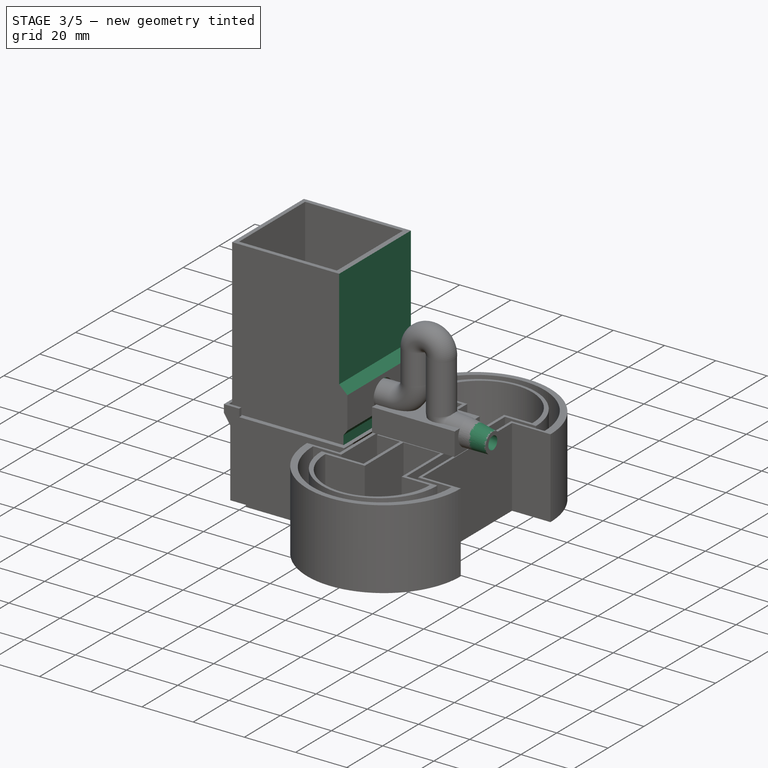
[diagram: stage 3 of 5 — iso view after this stage's code; geometry added in this stage tinted green]
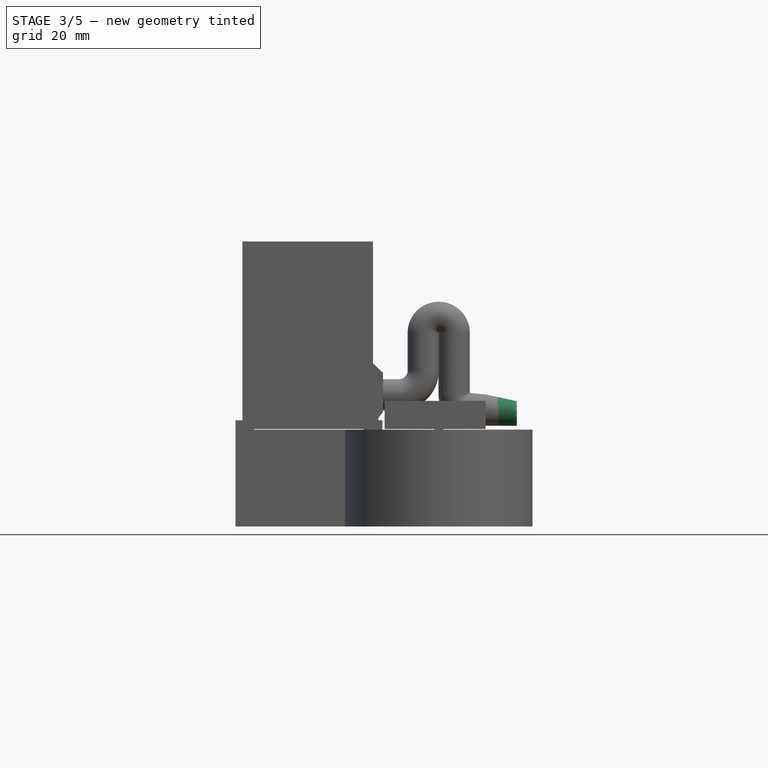
[diagram: stage 3 of 5 — front view after this stage's code; geometry added in this stage tinted green]
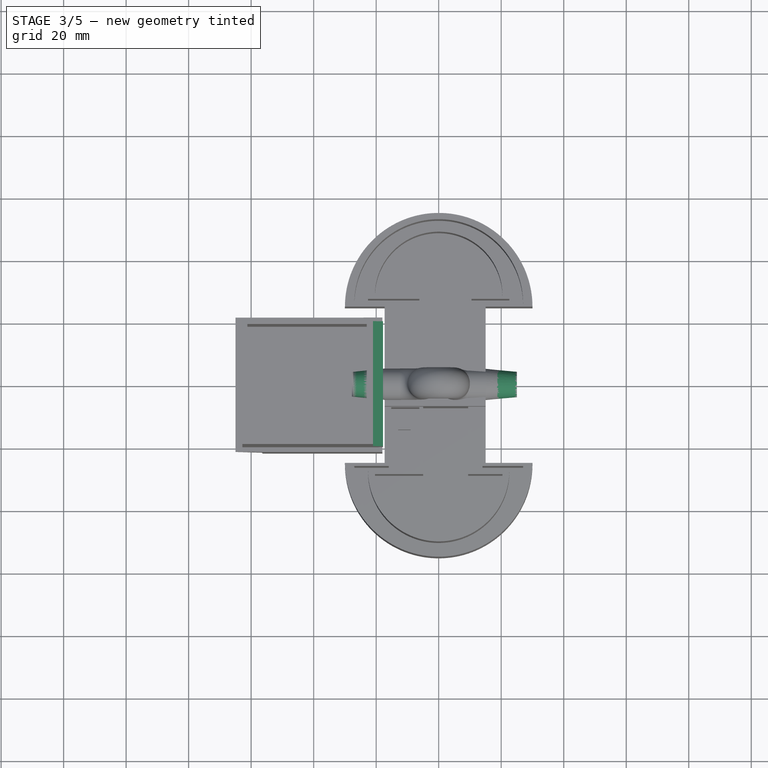
[diagram: stage 3 of 5 — top view after this stage's code; geometry added in this stage tinted green]
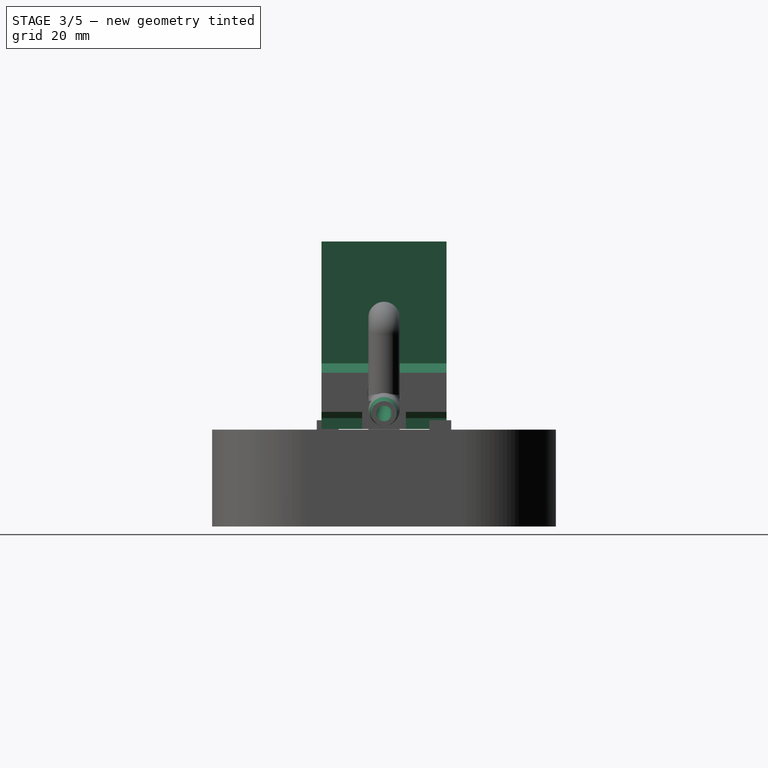
[diagram: stage 3 of 5 — right view after this stage's code; geometry added in this stage tinted green]
FEATURE [PartDesign::Chamfer] Chamfer
  Angle = 6
  Base = -> AdditivePipe [Face11]
  BaseFeature = -> AdditivePipe
  ChamferType = 2
  FlipDirection = false
  Size = 10
  Size2 = 1
  SupportTransform = false
FEATURE [PartDesign::Chamfer] Chamfer001
  Angle = 6
  Base = -> Chamfer [Face15]
  BaseFeature = -> Chamfer
  ChamferType = 2
  FlipDirection = false
  Size = 10
  Size2 = 1
  SupportTransform = false
FEATURE [PartDesign::SubtractivePipe] SubtractivePipe
  AuxilleryCurvelinear = true
  AuxillerySpineTangent = false
  BaseFeature = -> Chamfer001
  Binormal = (0,0,0)
  Mode = 0
  Profile = -> Sketch009
  Spine = -> Sketch
  SpineTangent = false
  Transformation = 0
  Transition = 0
FEATURE [Sketcher::SketchObject] Sketch003  label="Subtractie box connection loft part 1"
  FullyConstrained = true
  MapMode = 5
  Placement = pos=(-17.3,0,0) rot=(0.57735,-0.57735,-0.57735;2.0944rad)
  Support = -> [SubtractivePipe]
  sketch-geometry (1):
    g0: Circle CenterX=0 CenterY=11 CenterZ=0 NormalX=0 NormalY=0 NormalZ=1 AngleXU=0 Radius=5.4
  constraints (3):
    c: PointOnObject(g0,g-2)
    c: Radius(g0) = 5.4
    c: DistanceY(g-1,g0) = 11
FEATURE [Sketcher::SketchObject] Sketch010  label="Soma container"
  FullyConstrained = true
  MapMode = 5
  Support = -> [XY_Plane001]
  sketch-geometry (4):
    g0: LineSegment StartX=-62.8 StartY=-20 StartZ=0 EndX=-17.8 EndY=-20 EndZ=0
    g1: LineSegment StartX=-17.8 StartY=-20 StartZ=0 EndX=-17.8 EndY=20 EndZ=0
    g2: LineSegment StartX=-17.8 StartY=20 StartZ=0 EndX=-62.8 EndY=20 EndZ=0
    g3: LineSegment StartX=-62.8 StartY=20 StartZ=0 EndX=-62.8 EndY=-20 EndZ=0
  constraints (11):
    c: Coincident(g0,g1)
    c: Coincident(g1,g2)
    c: Coincident(g2,g3)
    c: Coincident(g3,g0)
    c: Horizontal(g0)
    c: Horizontal(g2)
    c: Vertical(g1)
    c: DistanceX(g1,g-1) = 17.8
    c: DistanceX(g2,g2) = 45
    c: DistanceY(g3,g3) = 40
    c: Symmetric(g0,g2,g-1)
FEATURE [Sketcher::SketchObject] Sketch011  label="Subtractie box connection loft part 2"
  FullyConstrained = true
  Placement = pos=(-27.8,0,0) rot=(-0.576467,0.576467,0.579113;4.18879rad)
  sketch-geometry (1):
    g0: Circle CenterX=0 CenterY=11 CenterZ=0 NormalX=0 NormalY=0 NormalZ=1 AngleXU=0 Radius=4.4
  constraints (3):
    c: DistanceY(g-1,g0) = 11
    c: Radius(g0) = 4.4
    c: DistanceX(g0,g-1) = 0
FEATURE [Sketcher::SketchObject] Sketch012  label="Soma hollow profile"
  FullyConstrained = true
  MapMode = 5
  Placement = pos=(0,0,9) rot=(0,0,1;0rad)
  sketch-geometry (4):
    g0: LineSegment StartX=-23 StartY=18.4 StartZ=0 EndX=-61.2 EndY=18.4 EndZ=0
    g1: LineSegment StartX=-61.2 StartY=18.4 StartZ=0 EndX=-61.2 EndY=-18.4 EndZ=0
    g2: LineSegment StartX=-61.2 StartY=-18.4 StartZ=0 EndX=-23 EndY=-18.4 EndZ=0
    g3: LineSegment StartX=-23 StartY=-18.4 StartZ=0 EndX=-23 EndY=18.4 EndZ=0
  constraints (11):
    c: Coincident(g0,g1)
    c: Coincident(g1,g2)
    c: Coincident(g2,g3)
    c: Coincident(g3,g0)
    c: Horizontal(g0)
    c: Horizontal(g2)
    c: Vertical(g3)
    c: DistanceX(g0,g-1) = 23
    c: Symmetric(g0,g1,g-1)
    c: DistanceY(g1,g1) = 36.8
    c: DistanceX(g2,g2) = 38.2
FEATURE [Sketcher::SketchObject] Sketch014  label="Subtractie base loft 2"
  FullyConstrained = true
  MapMode = 5
  Placement = pos=(0,0,0) rot=(1,0,0;3.14159rad)
  Support = -> [SubtractivePipe]
  sketch-geometry (4):
    g0: LineSegment StartX=-1.7 StartY=5.2 StartZ=0 EndX=1.7 EndY=5.2 EndZ=0
    g1: LineSegment StartX=1.7 StartY=5.2 StartZ=0 EndX=1.7 EndY=-5.2 EndZ=0
    g2: LineSegment StartX=1.7 StartY=-5.2 StartZ=0 EndX=-1.7 EndY=-5.2 EndZ=0
    g3: LineSegment StartX=-1.7 StartY=-5.2 StartZ=0 EndX=-1.7 EndY=5.2 EndZ=0
  constraints (10):
    c: Coincident(g0,g1)
    c: Coincident(g1,g2)
    c: Coincident(g2,g3)
    c: Coincident(g3,g0)
    c: Horizontal(g2)
    c: Vertical(g3)
    c: Symmetric(g0,g0,g-2)
    c: Symmetric(g1,g0,g-1)
    c: DistanceX(g0,g0) = 3.4
    c: DistanceY(g1,g0) = 10.4
FEATURE [Sketcher::SketchObject] Sketch015  label="Subtractie base loft 1"
  FullyConstrained = true
  Placement = pos=(0,0,5) rot=(0,0,1;0rad)
  sketch-geometry (4):
    g0: LineSegment StartX=-0.7 StartY=5.2 StartZ=0 EndX=0.7 EndY=5.2 EndZ=0
    g1: LineSegment StartX=0.7 StartY=5.2 StartZ=0 EndX=0.7 EndY=-5.2 EndZ=0
    g2: LineSegment StartX=0.7 StartY=-5.2 StartZ=0 EndX=-0.7 EndY=-5.2 EndZ=0
    g3: LineSegment StartX=-0.7 StartY=-5.2 StartZ=0 EndX=-0.7 EndY=5.2 EndZ=0
  constraints (10):
    c: Coincident(g0,g1)
    c: Coincident(g1,g2)
    c: Coincident(g2,g3)
    c: Coincident(g3,g0)
    c: Horizontal(g2)
    c: Vertical(g3)
    c: Symmetric(g0,g0,g-2)
    c: Symmetric(g0,g1,g-1)
    c: DistanceX(g0,g0) = 1.4
    c: DistanceY(g1,g1) = 10.4
FEATURE [PartDesign::SubtractiveLoft] SubtractiveLoft002
  BaseFeature = -> SubtractivePipe
  Closed = false
  Profile = -> Sketch014
  Ruled = false
  Sections = -> [Sketch015]
FEATURE [PartDesign::SubtractiveLoft] SubtractiveLoft
  BaseFeature = -> SubtractivePipe002
  Closed = false
  Profile = -> Sketch003
  Ruled = false
  Sections = -> [Sketch011]
FEATURE [PartDesign::SubtractivePipe] SubtractivePipe003
  AuxilleryCurvelinear = true
  AuxillerySpineTangent = false
  BaseFeature = -> SubtractiveLoft
  Binormal = (0,0,0)
  Mode = 0
  Profile = -> Sketch033
  Spine = -> Sketch034
  SpineTangent = false
  Transformation = 0
  Transition = 0
FEATURE [PartDesign::SubtractivePipe] SubtractivePipe004
  AuxilleryCurvelinear = true
  AuxillerySpineTangent = false
  BaseFeature = -> SubtractivePipe003
  Binormal = (0,0,0)
  Mode = 0
  Profile = -> Sketch036
  Spine = -> Sketch037
  SpineTangent = false
  Transformation = 0
  Transition = 0
FEATURE [Sketcher::SketchObject] Sketch043  label="Float hollow path"
  FullyConstrained = true
  Placement = pos=(0,0,0) rot=(0.57735,-0.57735,-0.57735;2.0944rad)
  Support = -> [SubtractiveLoft005]
  sketch-geometry (1):
    g0: LineSegment StartX=-15 StartY=-0.2 StartZ=0 EndX=-15 EndY=-28.8 EndZ=0
  constraints (4):
    c: Vertical(g0)
    c: DistanceY(g0,g-1) = 0.2
    c: DistanceY(g0,g0) = 28.6
    c: DistanceX(g0,g-1) = 15
FEATURE [Sketcher::SketchObject] Sketch044  label="Float hollow profile 2"
  FullyConstrained = true
  MapMode = 5
  Placement = pos=(0,0,-0.2) rot=(0,0,1;0rad)
  sketch-geometry (8):
    g0: LineSegment StartX=-5 StartY=28.6 StartZ=0 EndX=-5 EndY=7 EndZ=0
    g1: LineSegment StartX=-5 StartY=7 StartZ=0 EndX=9.4 EndY=7 EndZ=0
    g2: LineSegment StartX=9.4 StartY=7 StartZ=0 EndX=9.4 EndY=28.6 EndZ=0
    g3: ArcOfCircle CenterX=0 CenterY=28.6 CenterZ=0 NormalX=0 NormalY=0 NormalZ=1 AngleXU=0 Radius=20.4 StartAngle=-1.9611e-12 EndAngle=3.14159
    g4: LineSegment StartX=-5 StartY=28.6 StartZ=0 EndX=-13.4 EndY=28.6 EndZ=0
    g5: LineSegment StartX=-13.4 StartY=28.6 StartZ=0 EndX=-20.4 EndY=28.6 EndZ=0
    g6: LineSegment StartX=9.4 StartY=28.6 StartZ=0 EndX=13.4 EndY=28.6 EndZ=0
    g7: LineSegment StartX=13.4 StartY=28.6 StartZ=0 EndX=20.4 EndY=28.6 EndZ=0
  constraints (24):
    c: Vertical(g0)
    c: Coincident(g0,g1)
    c: Horizontal(g1)
    c: Coincident(g1,g2)
    c: Vertical(g2)
    c: DistanceX(g-1,g2) = 9.4
    c: DistanceX(g0,g-1) = 5
    c: DistanceY(g-1,g1) = 7
    c: DistanceY(g2,g2) = 21.6
    c: Equal(g2,g0)
    c: PointOnObject(g3,g-2)
    c: Coincident(g0,g4)
    c: Horizontal(g4)
    c: Coincident(g4,g5)
    c: Coincident(g5,g3)
    c: Horizontal(g5)
    c: Coincident(g2,g6)
    c: Horizontal(g6)
    c: Coincident(g7,g3)
    c: Equal(g7,g5)
    c: Angle(g3) = 3.14159
    c: Radius(g3) = 20.4
    c: DistanceX(g7,g7) = 7
    c: Tangent(g6,g7) = -1.5708
FEATURE [Sketcher::SketchObject] Sketch045  label="gasket path"
  FullyConstrained = true
  MapMode = 5
  Placement = pos=(-17.8,0,0) rot=(0.57735,0.57735,0.57735;2.0944rad)
  Support = -> [SubtractivePipe004]
  sketch-geometry (1):
    g0: Circle CenterX=0 CenterY=11 CenterZ=0 NormalX=0 NormalY=0 NormalZ=1 AngleXU=0 Radius=5.4
  constraints (3):
    c: DistanceX(g0,g-1) = 0
    c: DistanceY(g-1,g0) = 11
    c: Radius(g0) = 5.4
FEATURE [Sketcher::SketchObject] Sketch046  label="gasget profile"
  FullyConstrained = true
  Placement = pos=(0,-2.3,10.5) rot=(0,0,1;0rad)
  Support = -> [XY_Plane001]
  sketch-geometry (1):
    g0: Circle CenterX=-20 CenterY=-3.12 CenterZ=0 NormalX=0 NormalY=0 NormalZ=1 AngleXU=0 Radius=0.8
  constraints (3):
    c: DistanceY(g0,g-1) = 3.12
    c: DistanceX(g0,g-1) = 20
    c: Radius(g0) = 0.8
FEATURE [PartDesign::SubtractivePipe] SubtractivePipe007
  AuxilleryCurvelinear = true
  AuxillerySpineTangent = false
  BaseFeature = -> SubtractivePipe004
  Binormal = (0,0,0)
  Mode = 0
  Profile = -> Sketch046
  Spine = -> Sketch045
  SpineTangent = false
  Transformation = 0
  Transition = 0
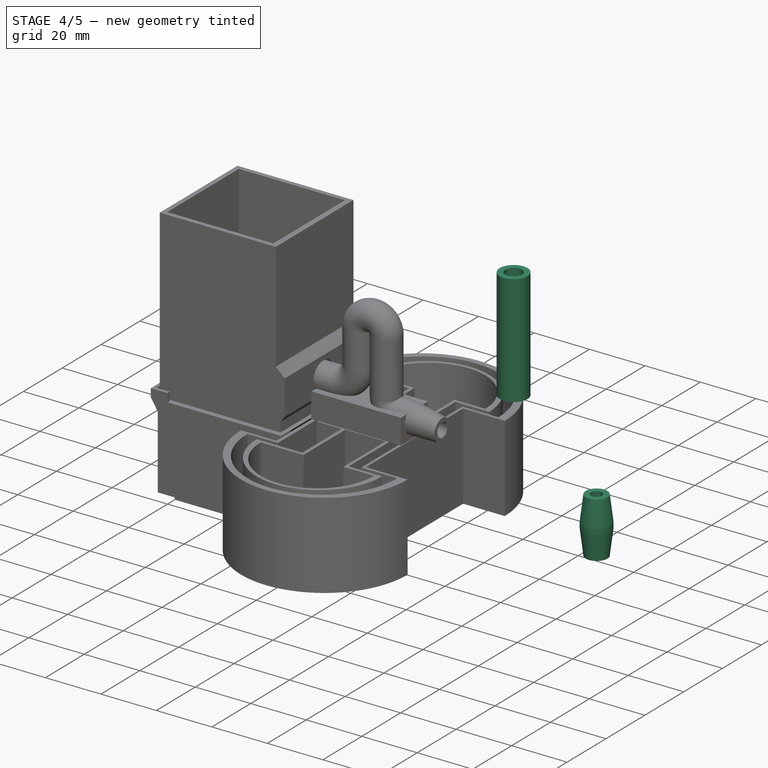
[diagram: stage 4 of 5 — iso view after this stage's code; geometry added in this stage tinted green]
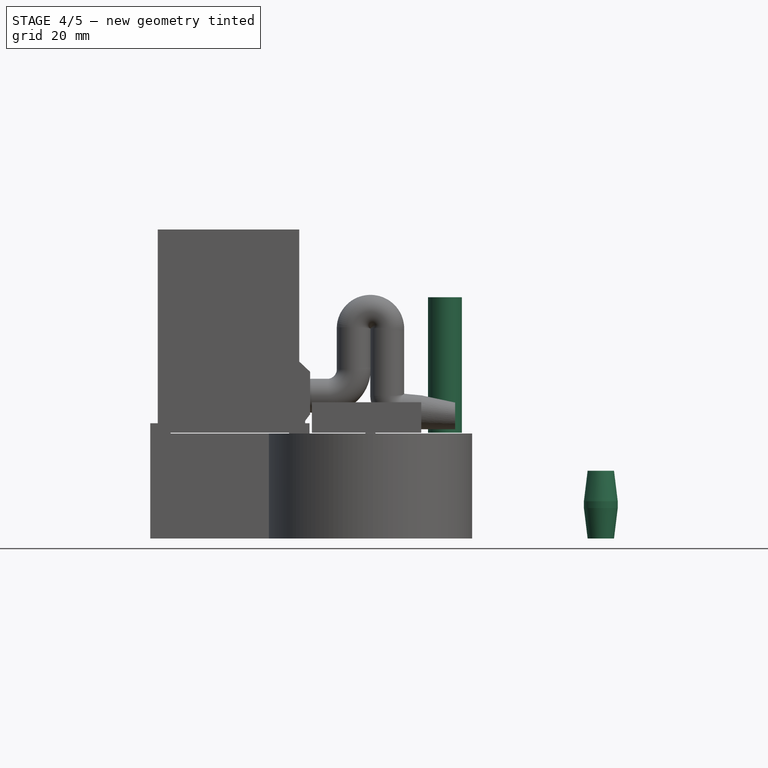
[diagram: stage 4 of 5 — front view after this stage's code; geometry added in this stage tinted green]
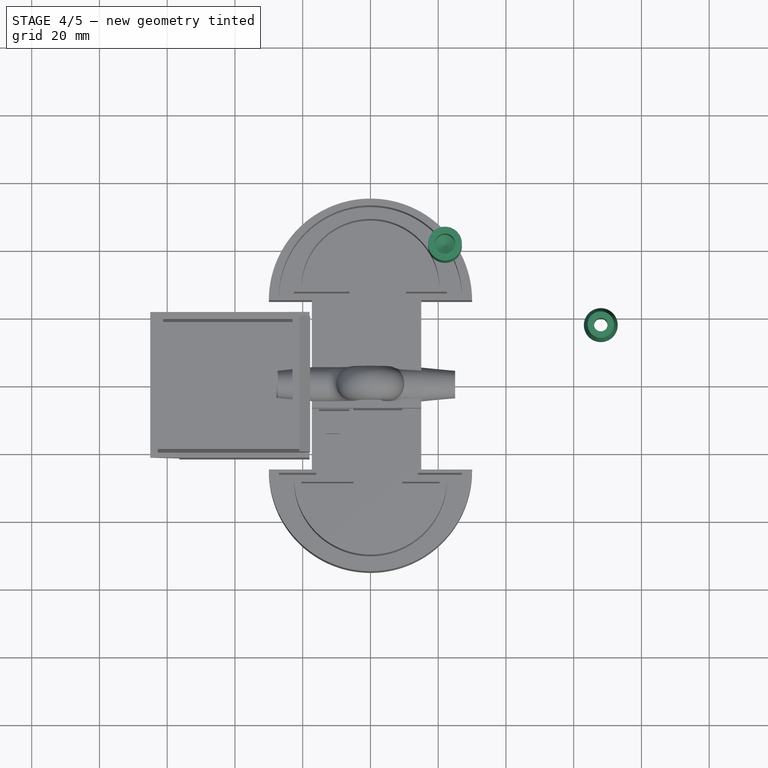
[diagram: stage 4 of 5 — top view after this stage's code; geometry added in this stage tinted green]
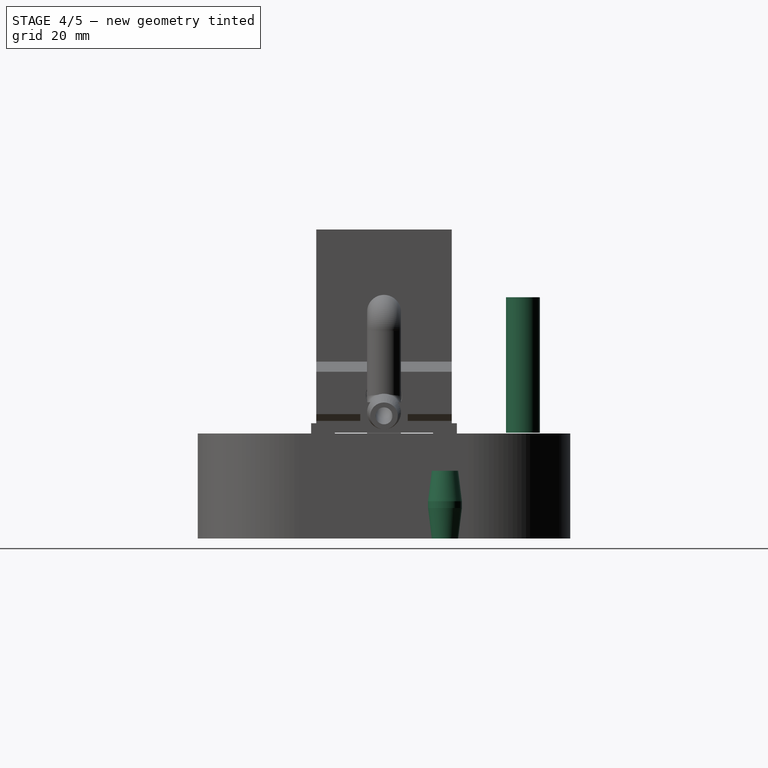
[diagram: stage 4 of 5 — right view after this stage's code; geometry added in this stage tinted green]
FEATURE [TechDraw::DrawSVGTemplate] Template
  EditableTexts = Designed_by_Name=Designed by Name; Drawing_number=Drawing number; FC-Date=Date; FC-SC=Scale; FC-SH=Sheet; FC-Title=Title; Subtitle=Subtitle; Weight=Weight
  Height = 210
  Orientation = 1
  Width = 297
FEATURE [TechDraw::DrawViewPart] View
  CoarseView = false
  Direction = (0.577,-0.577,0.577)
  Focus = 100
  HardHidden = false
  IsoCount = 0
  IsoHidden = false
  IsoVisible = false
  LockPosition = false
  Perspective = false
  Rotation = 0
  ScaleType = 0
  SeamHidden = false
  SeamVisible = true
  SmoothHidden = false
  SmoothVisible = true
  Source = -> [Body]
  X = 194.21
  XDirection = (0.707,0.707,0)
  Y = 157.334
FEATURE [Sketcher::SketchObject] Sketch038  label="Soma connection body"
  FullyConstrained = true
  Placement = pos=(0,0,-21.2) rot=(0,0,1;0rad)
  Support = -> [XY_Plane005]
  sketch-geometry (1):
    g0: Circle CenterX=22 CenterY=24 CenterZ=0 NormalX=0 NormalY=0 NormalZ=1 AngleXU=0 Radius=5
  constraints (3):
    c: DistanceY(g-1,g0) = 24
    c: DistanceX(g-1,g0) = 22
    c: Radius(g0) = 5
FEATURE [PartDesign::Pad] Pad009
  Direction = (1,1,1)
  Length = 10
  Length2 = 100
  Profile = -> Sketch038
  Type = 0
FEATURE [PartDesign::Pad] Pad010
  BaseFeature = -> Pad009
  Direction = (1,1,1)
  Length = 10
  Length2 = 100
  Profile = -> Sketch038
  Reversed = true
  Type = 0
FEATURE [PartDesign::Chamfer] Chamfer002
  Angle = 7
  Base = -> Pad010 [Face1]
  BaseFeature = -> Pad010
  ChamferType = 2
  FlipDirection = false
  Size = 9
  Size2 = 1
  SupportTransform = false
FEATURE [PartDesign::Chamfer] Chamfer003
  Angle = 7
  Base = -> Chamfer002 [Face3]
  BaseFeature = -> Chamfer002
  ChamferType = 2
  FlipDirection = false
  Size = 9
  Size2 = 1
  SupportTransform = false
FEATURE [Sketcher::SketchObject] Sketch039  label="Soma output hollow loft1"
  FullyConstrained = true
  MapMode = 5
  Placement = pos=(0,0,-11.2) rot=(0,0,1;0rad)
  Support = -> [Chamfer003]
  sketch-geometry (1):
    g0: Circle CenterX=12 CenterY=24 CenterZ=0 NormalX=0 NormalY=0 NormalZ=1 AngleXU=0 Radius=2
  constraints (3):
    c: DistanceX(g-1,g0) = 12
    c: DistanceY(g-1,g0) = 24
    c: Radius(g0) = 2
FEATURE [Sketcher::SketchObject] Sketch040  label="Soma output hollow loft2"
  FullyConstrained = true
  MapMode = 5
  Placement = pos=(0,0,-31.2) rot=(1,0,0;3.14159rad)
  Support = -> [Chamfer003]
  sketch-geometry (1):
    g0: Circle CenterX=12 CenterY=-24 CenterZ=0 NormalX=0 NormalY=0 NormalZ=1 AngleXU=0 Radius=2
  constraints (3):
    c: DistanceX(g-1,g0) = 12
    c: Radius(g0) = 2
    c: DistanceY(g0,g-1) = 24
FEATURE [PartDesign::SubtractiveLoft] SubtractiveLoft004
  BaseFeature = -> Chamfer003
  Closed = false
  Profile = -> Sketch039
  Ruled = false
  Sections = -> [Sketch040]
FEATURE [PartDesign::Body] Body001  label="Soma positive load"
  Group = -> [Sketch003,Sketch010,Sketch011,Sketch012,Sketch028,Pad005,Sketch033,Sketch034,Sketch036,Sketch037,SubtractivePipe002,SubtractiveLoft,SubtractivePipe003,SubtractivePipe004,Sketch045,Sketch046,SubtractivePipe007]
  Origin = -> Origin001
  Tip = -> SubtractivePipe007
FEATURE [TechDraw::DrawViewPart] View001
  CoarseView = false
  Direction = (0.577,-0.577,0.577)
  Focus = 100
  HardHidden = false
  IsoCount = 0
  IsoHidden = false
  IsoVisible = false
  LockPosition = false
  Perspective = false
  Rotation = 0
  ScaleType = 0
  SeamHidden = false
  SeamVisible = true
  SmoothHidden = false
  SmoothVisible = true
  Source = -> [Body001]
  X = 128.727
  XDirection = (0.707,0.707,0)
  Y = 107.666
FEATURE [TechDraw::DrawViewPart] View004
  CoarseView = false
  Direction = (0.577,-0.577,0.577)
  Focus = 100
  HardHidden = false
  IsoCount = 0
  IsoHidden = false
  IsoVisible = false
  LockPosition = false
  Perspective = false
  Rotation = 0
  ScaleType = 0
  SeamHidden = false
  SeamVisible = true
  SmoothHidden = false
  SmoothVisible = true
  Source = -> [Body,Body001]
  X = 57.6005
  XDirection = (0.707,0.707,0)
  Y = 146.475
FEATURE [Sketcher::SketchObject] Sketch047  label="Connection hollow profile"
  FullyConstrained = true
  MapMode = 5
  Placement = pos=(0,0,-11.2) rot=(0,0,1;0rad)
  Support = -> [SubtractiveLoft004]
  sketch-geometry (1):
    g0: Circle CenterX=22 CenterY=24 CenterZ=0 NormalX=0 NormalY=0 NormalZ=1 AngleXU=0 Radius=2
  constraints (3):
    c: DistanceY(g-1,g0) = 24
    c: DistanceX(g-1,g0) = 22
    c: Radius(g0) = 2
FEATURE [Sketcher::SketchObject] Sketch048  label="connection hollow path"
  FullyConstrained = false
  Placement = pos=(22,48,-43.2) rot=(0.57735,-0.57735,0.57735;4.18879rad)
  Support = -> [SubtractivePipe001]
  sketch-geometry (1):
    g0: LineSegment StartX=24 StartY=-10.0897 StartZ=0 EndX=24 EndY=-33.5803 EndZ=0
  constraints (2):
    c: Vertical(g0)
    c: DistanceX(g-1,g0) = 24
FEATURE [PartDesign::SubtractivePipe] SubtractivePipe008
  AuxilleryCurvelinear = true
  AuxillerySpineTangent = false
  BaseFeature = -> SubtractiveLoft004
  Binormal = (0,0,0)
  Mode = 0
  Profile = -> Sketch047
  Spine = -> Sketch048
  SpineTangent = false
  Transformation = 0
  Transition = 0
FEATURE [PartDesign::Body] Body008  label="Receptor"
  BaseFeature = -> Body005
  Group = -> [Clone001,Sketch053,Sketch054,Sketch055,Sketch056,AdditiveLoft003,SubtractiveLoft006]
  Origin = -> Origin008
  Placement = pos=(37,0,-27) rot=(1,0,0;3.14159rad)
  Tip = -> SubtractiveLoft006
FEATURE [TechDraw::DrawViewPart] View007
  CoarseView = false
  Direction = (0.658,-0.224,0.719)
  Focus = 100
  HardHidden = false
  IsoCount = 0
  IsoHidden = false
  IsoVisible = false
  LockPosition = false
  Perspective = false
  Rotation = 0
  ScaleType = 0
  SeamHidden = false
  SeamVisible = true
  SmoothHidden = false
  SmoothVisible = true
  Source = -> [SubtractiveLoft006]
  X = 93.5158
  XDirection = (0.269,0.962,0.054)
  Y = 195.757
FEATURE [Sketcher::SketchObject] Sketch041
  FullyConstrained = true
  MapMode = 5
  Support = -> [XY_Plane006]
  sketch-geometry (1):
    g0: Circle CenterX=22 CenterY=41 CenterZ=0 NormalX=0 NormalY=0 NormalZ=1 AngleXU=0 Radius=5
  constraints (3):
    c: DistanceX(g-1,g0) = 22
    c: DistanceY(g-1,g0) = 41
    c: Radius(g0) = 5
FEATURE [PartDesign::Pad] Pad011
  Direction = (1,1,1)
  Length = 40
  Length2 = 100
  Profile = -> Sketch041
  Type = 0
FEATURE [PartDesign::Hole] Hole
  BaseFeature = -> Pad011
  Depth = 25
  DepthType = 0
  Diameter = 6
  DrillPoint = 1
  DrillPointAngle = 118
  HoleCutCountersinkAngle = 90
  HoleCutDepth = 0
  HoleCutDiameter = 0
  HoleCutType = 0
  ModelActualThread = false
  Profile = -> Pad011 [Face3]
  Tapered = false
  TaperedAngle = 90
  ThreadAngle = 0
  ThreadClass = 0
  ThreadCutOffInner = 0
  ThreadCutOffOuter = 0
  ThreadDirection = 0
  ThreadFit = 0
  ThreadPitch = 0
  ThreadSize = 0
  ThreadType = 0
  Threaded = false
FEATURE [PartDesign::Body] Body006  label="Dendrite"
  Group = -> [Sketch041,Pad011,Hole]
  Origin = -> Origin006
  Placement = pos=(17,0,0) rot=(1,0,0;0.314159rad)
  Tip = -> Hole
FEATURE [TechDraw::DrawViewPart] View006
  CoarseView = false
  Direction = (0.577,-0.577,0.577)
  Focus = 100
  HardHidden = false
  IsoCount = 0
  IsoHidden = false
  IsoVisible = false
  LockPosition = false
  Perspective = false
  Rotation = 0
  ScaleType = 0
  SeamHidden = false
  SeamVisible = true
  SmoothHidden = false
  SmoothVisible = true
  Source = -> [Body006]
  X = 102.506
  XDirection = (0.707,0.707,0)
  Y = 160.142
FEATURE [TechDraw::DrawPage] Page
  KeepUpdated = true
  NextBalloonIndex = 1
  ProjectionType = 0
  Template = -> Template
  Views = -> [View,View001,View002,View003,View004,View006,View007]
FEATURE [TechDraw::DrawSVGTemplate] Template001
  EditableTexts = Designed_by_Name=Designed by Name; Drawing_number=Drawing number; FC-Date=Date; FC-SC=Scale; FC-SH=Sheet; FC-Title=Title; Subtitle=Subtitle; Weight=Weight
  Height = 210
  Orientation = 1
  Width = 297
FEATURE [TechDraw::DrawViewPart] View008  label="Dendrite h"
  CoarseView = false
  Direction = (0.811,0.177,0.557)
  Focus = 100
  HardHidden = false
  IsoCount = 0
  IsoHidden = false
  IsoVisible = false
  LockPosition = false
  Perspective = false
  Rotation = 0
  ScaleType = 0
  SeamHidden = false
  SeamVisible = true
  SmoothHidden = false
  SmoothVisible = true
  Source = -> [Body006]
  X = 242.631
  XDirection = (0.297,0.696,-0.654)
  Y = 78.7372
FEATURE [TechDraw::DrawViewPart] View010  label="Receptor b"
  CoarseView = false
  Direction = (0.811,0.177,0.557)
  Focus = 100
  HardHidden = false
  IsoCount = 0
  IsoHidden = false
  IsoVisible = false
  LockPosition = false
  Perspective = false
  Rotation = 180
  ScaleType = 2
  SeamHidden = false
  SeamVisible = true
  SmoothHidden = false
  SmoothVisible = true
  Source = -> [Body008]
  X = 218.791
  XDirection = (-0.146,0.984,-0.1)
  Y = 156.993
FEATURE [TechDraw::DrawViewPart] View011  label="Receptor h"
  CoarseView = false
  Direction = (0.811,0.177,0.557)
  Focus = 100
  HardHidden = false
  IsoCount = 0
  IsoHidden = false
  IsoVisible = false
  LockPosition = false
  Perspective = false
  Rotation = 180
  ScaleType = 2
  SeamHidden = false
  SeamVisible = true
  SmoothHidden = false
  SmoothVisible = true
  Source = -> [Body008]
  X = 256.944
  XDirection = (0.297,0.696,-0.654)
  Y = 134.56
FEATURE [PartDesign::FeatureBase] Clone002
  BaseFeature = -> Body005
  Placement = pos=(46,-6,0) rot=(0,0,1;0rad)
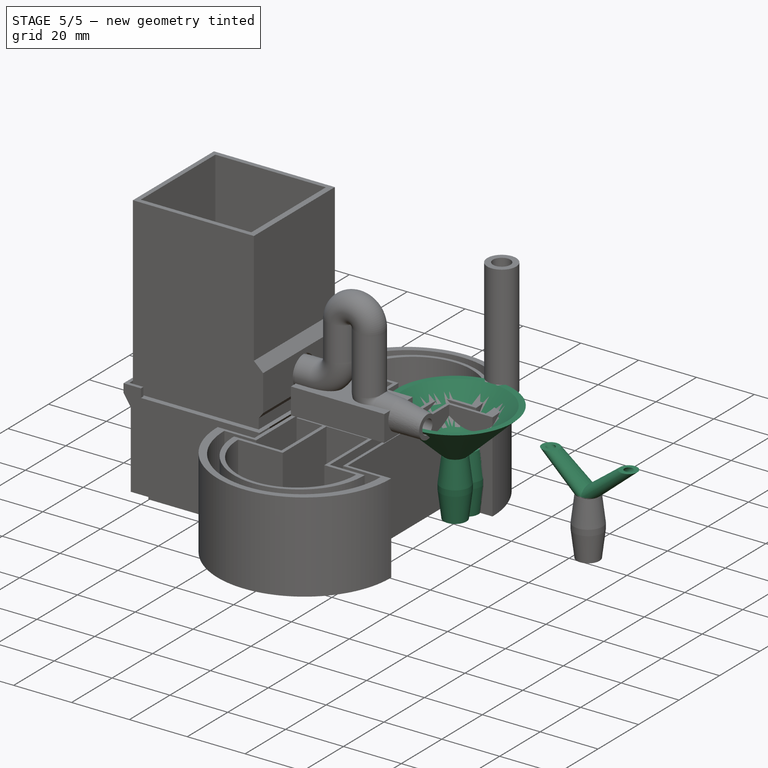
[diagram: stage 5 of 5 — iso view after this stage's code; geometry added in this stage tinted green]
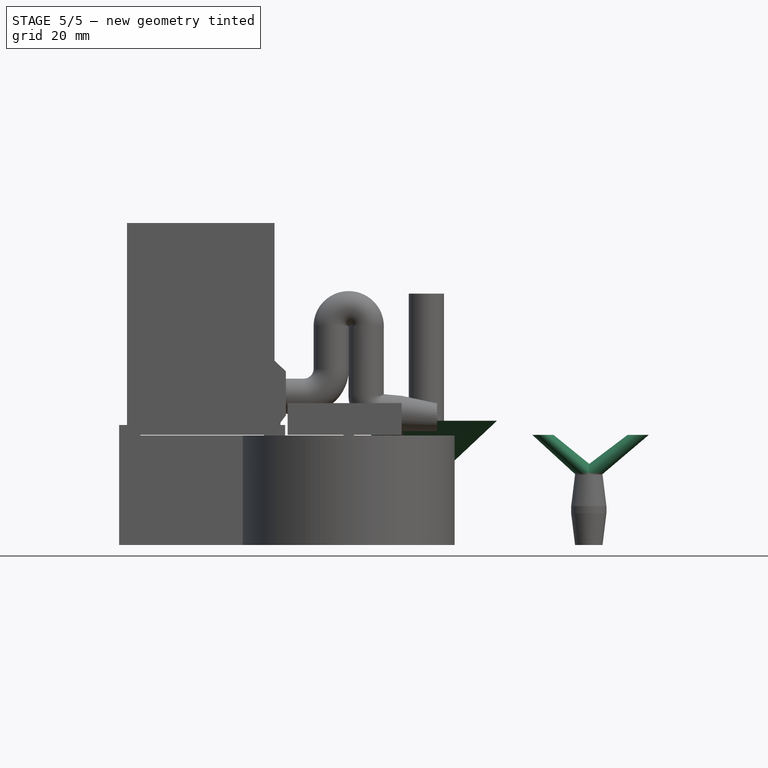
[diagram: stage 5 of 5 — front view after this stage's code; geometry added in this stage tinted green]
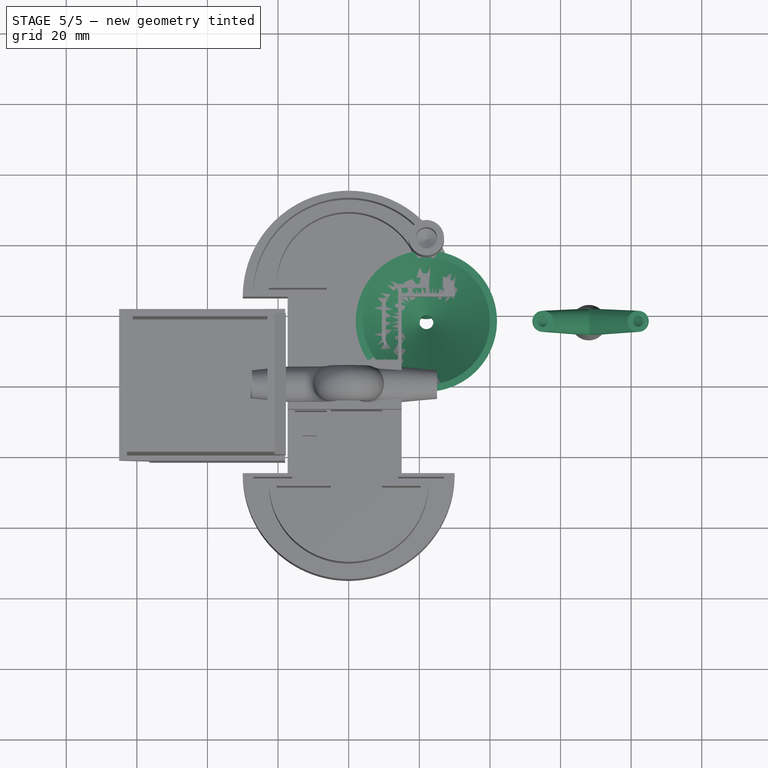
[diagram: stage 5 of 5 — top view after this stage's code; geometry added in this stage tinted green]
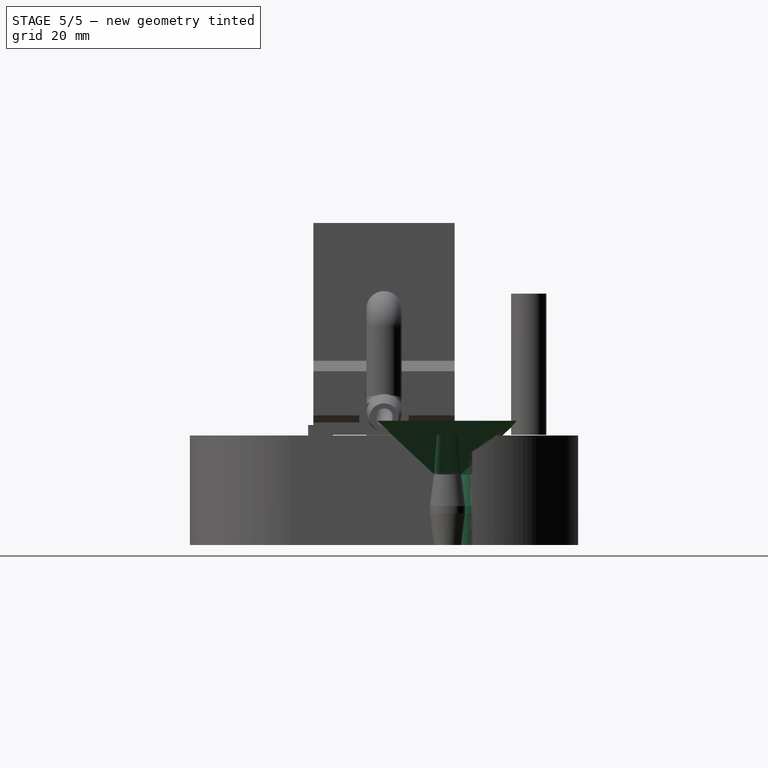
[diagram: stage 5 of 5 — right view after this stage's code; geometry added in this stage tinted green]
FEATURE [PartDesign::Body] Body005  label="Soma output connection"
  Group = -> [Sketch038,Pad009,Pad010,Chamfer002,Chamfer003,Sketch039,Sketch040,SubtractiveLoft004,Sketch047,Sketch048,SubtractivePipe008]
  Origin = -> Origin005
  Placement = pos=(0,-6,0) rot=(0,0,1;0rad)
  Tip = -> SubtractivePipe008
FEATURE [PartDesign::FeatureBase] Clone
  BaseFeature = -> Body005
FEATURE [Sketcher::SketchObject] Sketch049
  FullyConstrained = true
  Placement = pos=(0,0,-21) rot=(0,0,1;0rad)
  Support = -> [XY_Plane007]
  sketch-geometry (2):
    g0: ArcOfCircle CenterX=22 CenterY=24 CenterZ=0 NormalX=0 NormalY=0 NormalZ=1 AngleXU=0 Radius=5 StartAngle=2.49809 EndAngle=3.78509
    g1: LineSegment StartX=18 StartY=27 StartZ=0 EndX=18 EndY=21 EndZ=0
  constraints (7):
    c: Coincident(g1,g0)
    c: Coincident(g1,g0)
    c: DistanceX(g-1,g0) = 22
    c: Parallel(g1,g-2)
    c: DistanceY(g1,g1) = 6
    c: Radius(g0) = 5
    c: DistanceY(g-1,g0) = 24
FEATURE [Sketcher::SketchObject] Sketch050
  FullyConstrained = true
  Placement = pos=(-0.5,0,-17) rot=(0,0,1;0rad)
  Support = -> [XY_Plane007]
  sketch-geometry (4):
    g0: LineSegment StartX=15 StartY=28 StartZ=0 EndX=17 EndY=28 EndZ=0
    g1: LineSegment StartX=17 StartY=28 StartZ=0 EndX=17 EndY=21 EndZ=0
    g2: LineSegment StartX=17 StartY=21 StartZ=0 EndX=15 EndY=21 EndZ=0
    g3: LineSegment StartX=15 StartY=21 StartZ=0 EndX=15 EndY=28 EndZ=0
  constraints (12):
    c: Coincident(g0,g1)
    c: Coincident(g1,g2)
    c: Coincident(g2,g3)
    c: Coincident(g3,g0)
    c: Horizontal(g0)
    c: Horizontal(g2)
    c: Vertical(g1)
    c: Vertical(g3)
    c: DistanceY(g1,g1) = 7
    c: DistanceX(g0,g0) = 2
    c: DistanceY(g-1,g1) = 21
    c: DistanceX(g-1,g0) = 15
FEATURE [Sketcher::SketchObject] Sketch051
  FullyConstrained = true
  Placement = pos=(0.5,0,-8) rot=(0,0,1;0rad)
  Support = -> [XY_Plane007]
  sketch-geometry (4):
    g0: LineSegment StartX=15 StartY=28 StartZ=0 EndX=17 EndY=28 EndZ=0
    g1: LineSegment StartX=17 StartY=28 StartZ=0 EndX=17 EndY=21 EndZ=0
    g2: LineSegment StartX=17 StartY=21 StartZ=0 EndX=15 EndY=21 EndZ=0
    g3: LineSegment StartX=15 StartY=21 StartZ=0 EndX=15 EndY=28 EndZ=0
  constraints (12):
    c: Coincident(g0,g1)
    c: Coincident(g1,g2)
    c: Coincident(g2,g3)
    c: Coincident(g3,g0)
    c: Horizontal(g0)
    c: Horizontal(g2)
    c: Vertical(g1)
    c: Vertical(g3)
    c: DistanceY(g1,g1) = 7
    c: DistanceX(g0,g0) = 2
    c: DistanceY(g-1,g1) = 21
    c: DistanceX(g-1,g0) = 15
FEATURE [PartDesign::AdditiveLoft] AdditiveLoft002
  BaseFeature = -> Clone
  Closed = false
  Profile = -> Sketch049
  Ruled = false
  Sections = -> [Sketch050,Sketch051]
FEATURE [PartDesign::Body] Body004  label="Soma support"
  Group = -> [Sketch027,Sketch029,Sketch031,AdditiveLoft001,Sketch032,Sketch035,Pad006,Pad007,Pad013]
  Origin = -> Origin004
  Tip = -> Pad013
FEATURE [TechDraw::DrawViewPart] View003
  CoarseView = false
  Direction = (0.577,-0.577,0.577)
  Focus = 100
  HardHidden = false
  IsoCount = 0
  IsoHidden = false
  IsoVisible = false
  LockPosition = false
  Perspective = false
  Rotation = 0
  ScaleType = 0
  SeamHidden = false
  SeamVisible = true
  SmoothHidden = false
  SmoothVisible = true
  Source = -> [Body004]
  X = 93.5158
  XDirection = (0.707,0.707,0)
  Y = 55.6467
FEATURE [PartDesign::FeatureBase] Clone001
  BaseFeature = -> Body005
  Placement = pos=(0,-6,0) rot=(0,0,1;0rad)
FEATURE [Sketcher::SketchObject] Sketch053  label="Receptor Funnel loft 1"
  FullyConstrained = true
  MapMode = 5
  Placement = pos=(0,-6,-11.2) rot=(0,0,1;0rad)
  Support = -> [Clone001]
  sketch-geometry (1):
    g0: Circle CenterX=22 CenterY=24 CenterZ=0 NormalX=0 NormalY=0 NormalZ=1 AngleXU=0 Radius=3.8
  constraints (3):
    c: DistanceY(g-1,g0) = 24
    c: DistanceX(g-1,g0) = 22
    c: Radius(g0) = 3.8
FEATURE [Sketcher::SketchObject] Sketch054  label="Receptor Funnel loft 2"
  FullyConstrained = true
  Placement = pos=(0,0,4) rot=(0,0,1;0rad)
  Support = -> [XY_Plane008]
  sketch-geometry (1):
    g0: Circle CenterX=22 CenterY=18 CenterZ=0 NormalX=0 NormalY=0 NormalZ=1 AngleXU=0 Radius=20
  constraints (3):
    c: DistanceY(g-1,g0) = 18
    c: DistanceX(g-1,g0) = 22
    c: Radius(g0) = 20
FEATURE [Sketcher::SketchObject] Sketch055  label="Receptor Hollow Funnel loft 1"
  FullyConstrained = true
  MapMode = 5
  Placement = pos=(0,-6,-11.2) rot=(0,0,1;0rad)
  Support = -> [Clone001]
  sketch-geometry (1):
    g0: Circle CenterX=22 CenterY=24 CenterZ=0 NormalX=0 NormalY=0 NormalZ=1 AngleXU=0 Radius=2
  constraints (3):
    c: DistanceY(g-1,g0) = 24
    c: DistanceX(g-1,g0) = 22
    c: Radius(g0) = 2
FEATURE [Sketcher::SketchObject] Sketch056  label="Receptor Hollow Funnel loft 2"
  FullyConstrained = true
  Placement = pos=(0,0,4) rot=(0,0,1;0rad)
  Support = -> [XY_Plane008]
  sketch-geometry (1):
    g0: Circle CenterX=22 CenterY=18 CenterZ=0 NormalX=0 NormalY=0 NormalZ=1 AngleXU=0 Radius=18
  constraints (3):
    c: DistanceY(g-1,g0) = 18
    c: DistanceX(g-1,g0) = 22
    c: Radius(g0) = 18
FEATURE [PartDesign::AdditiveLoft] AdditiveLoft003
  BaseFeature = -> Clone001
  Closed = false
  Placement = pos=(0,-6,0) rot=(0,0,1;0rad)
  Profile = -> Sketch053
  Ruled = false
  Sections = -> [Sketch054]
FEATURE [PartDesign::SubtractiveLoft] SubtractiveLoft006
  BaseFeature = -> AdditiveLoft003
  Closed = false
  Placement = pos=(0,-6,0) rot=(0,0,1;0rad)
  Profile = -> Sketch055
  Ruled = false
  Sections = -> [Sketch056]
FEATURE [Sketcher::SketchObject] Sketch057  label="dedrite base loft"
  FullyConstrained = true
  MapMode = 5
  Placement = pos=(46,-6,-11.2) rot=(0,0,1;0rad)
  Support = -> [Clone002]
  sketch-geometry (1):
    g0: Circle CenterX=22 CenterY=24 CenterZ=0 NormalX=0 NormalY=0 NormalZ=1 AngleXU=0 Radius=3.8
  constraints (3):
    c: DistanceY(g-1,g0) = 24
    c: DistanceX(g-1,g0) = 22
    c: Radius(g0) = 3.8
FEATURE [Sketcher::SketchObject] Sketch058  label="dedrite base negative loft"
  FullyConstrained = true
  MapMode = 5
  Placement = pos=(46,-6,-11.2) rot=(0,0,1;0rad)
  Support = -> [Clone002]
  sketch-geometry (1):
    g0: Circle CenterX=22 CenterY=24 CenterZ=0 NormalX=0 NormalY=0 NormalZ=1 AngleXU=0 Radius=2
  constraints (3):
    c: DistanceY(g-1,g0) = 24
    c: DistanceX(g-1,g0) = 22
    c: Radius(g0) = 2
FEATURE [Sketcher::SketchObject] Sketch059  label="dedrite split loft 1"
  FullyConstrained = true
  MapMode = 5
  Support = -> [XY_Plane009]
  sketch-geometry (1):
    g0: Circle CenterX=55 CenterY=18 CenterZ=0 NormalX=0 NormalY=0 NormalZ=1 AngleXU=0 Radius=3
  constraints (3):
    c: DistanceY(g-1,g0) = 18
    c: Radius(g0) = 3
    c: DistanceX(g-1,g0) = 55
FEATURE [Sketcher::SketchObject] Sketch060  label="dedrite split negative loft 1"
  FullyConstrained = true
  MapMode = 5
  Support = -> [XY_Plane009]
  sketch-geometry (1):
    g0: Circle CenterX=55 CenterY=18 CenterZ=0 NormalX=0 NormalY=0 NormalZ=1 AngleXU=0 Radius=1.5
  constraints (3):
    c: DistanceY(g-1,g0) = 18
    c: DistanceX(g-1,g0) = 55
    c: Radius(g0) = 1.5
FEATURE [Sketcher::SketchObject] Sketch061  label="dedrite split loft 2"
  FullyConstrained = true
  MapMode = 5
  Support = -> [XY_Plane009]
  sketch-geometry (1):
    g0: Circle CenterX=82 CenterY=18 CenterZ=0 NormalX=0 NormalY=0 NormalZ=1 AngleXU=0 Radius=3
  constraints (3):
    c: DistanceY(g-1,g0) = 18
    c: DistanceX(g-1,g0) = 82
    c: Radius(g0) = 3
FEATURE [Sketcher::SketchObject] Sketch062  label="dedrite split negative loft 2"
  FullyConstrained = true
  MapMode = 5
  Support = -> [XY_Plane009]
  sketch-geometry (1):
    g0: Circle CenterX=82 CenterY=18 CenterZ=0 NormalX=0 NormalY=0 NormalZ=1 AngleXU=0 Radius=1.5
  constraints (3):
    c: DistanceY(g-1,g0) = 18
    c: DistanceX(g-1,g0) = 82
    c: Radius(g0) = 1.5
FEATURE [PartDesign::AdditiveLoft] AdditiveLoft004
  BaseFeature = -> Clone002
  Closed = false
  Placement = pos=(46,-6,0) rot=(0,0,1;0rad)
  Profile = -> Sketch057
  Ruled = false
  Sections = -> [Sketch059]
FEATURE [PartDesign::AdditiveLoft] AdditiveLoft005
  BaseFeature = -> AdditiveLoft004
  Closed = false
  Placement = pos=(46,-6,0) rot=(0,0,1;0rad)
  Profile = -> Sketch057
  Ruled = false
  Sections = -> [Sketch061]
FEATURE [PartDesign::SubtractiveLoft] SubtractiveLoft007
  BaseFeature = -> AdditiveLoft005
  Closed = false
  Placement = pos=(46,-6,0) rot=(0,0,1;0rad)
  Profile = -> Sketch058
  Ruled = false
  Sections = -> [Sketch060]
FEATURE [PartDesign::SubtractiveLoft] SubtractiveLoft008
  BaseFeature = -> SubtractiveLoft007
  Closed = false
  Placement = pos=(46,-6,0) rot=(0,0,1;0rad)
  Profile = -> Sketch058
  Ruled = false
  Sections = -> [Sketch062]
FEATURE [PartDesign::Body] Body009  label="Dendrite weigth"
  BaseFeature = -> Body005
  Group = -> [Clone002,Sketch057,Sketch058,Sketch059,Sketch060,Sketch061,Sketch062,AdditiveLoft004,AdditiveLoft005,SubtractiveLoft007,SubtractiveLoft008]
  Origin = -> Origin009
  Tip = -> SubtractiveLoft008
FEATURE [TechDraw::DrawViewPart] View009  label="Dendrite b"
  CoarseView = false
  Direction = (0.811,0.177,0.557)
  Focus = 100
  HardHidden = false
  IsoCount = 0
  IsoHidden = false
  IsoVisible = false
  LockPosition = false
  Perspective = false
  Rotation = 0
  ScaleType = 0
  SeamHidden = false
  SeamVisible = true
  SmoothHidden = false
  SmoothVisible = true
  Source = -> [Body006]
  X = 173.915
  XDirection = (-0.146,0.984,-0.1)
  Y = 112.226
FEATURE [TechDraw::DrawViewPart] View012
  CoarseView = false
  Direction = (0.577,-0.577,0.577)
  Focus = 100
  HardHidden = false
  IsoCount = 0
  IsoHidden = false
  IsoVisible = false
  LockPosition = false
  Perspective = false
  Rotation = 0
  ScaleType = 0
  SeamHidden = false
  SeamVisible = true
  SmoothHidden = false
  SmoothVisible = true
  Source = -> [Body,Body001,Body002,Body003,Body004]
  X = 82.4349
  XDirection = (0.707,0.707,0)
  Y = 82.3623
FEATURE [TechDraw::DrawPage] Page001
  KeepUpdated = true
  NextBalloonIndex = 1
  ProjectionType = 0
  Template = -> Template001
  Views = -> [View008,View009,View010,View011,View012]
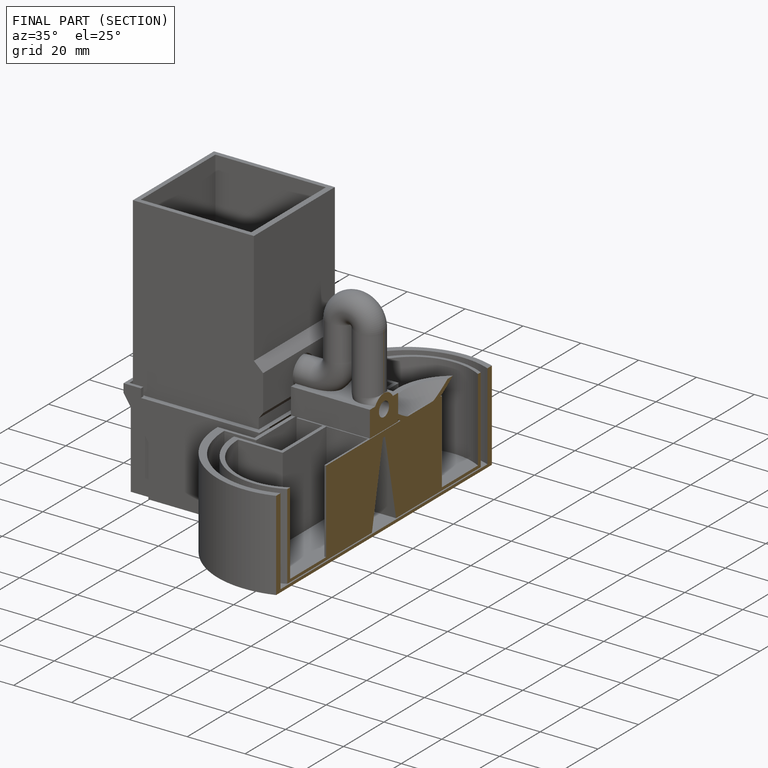
[diagram: finished part — half-section view (interior)]
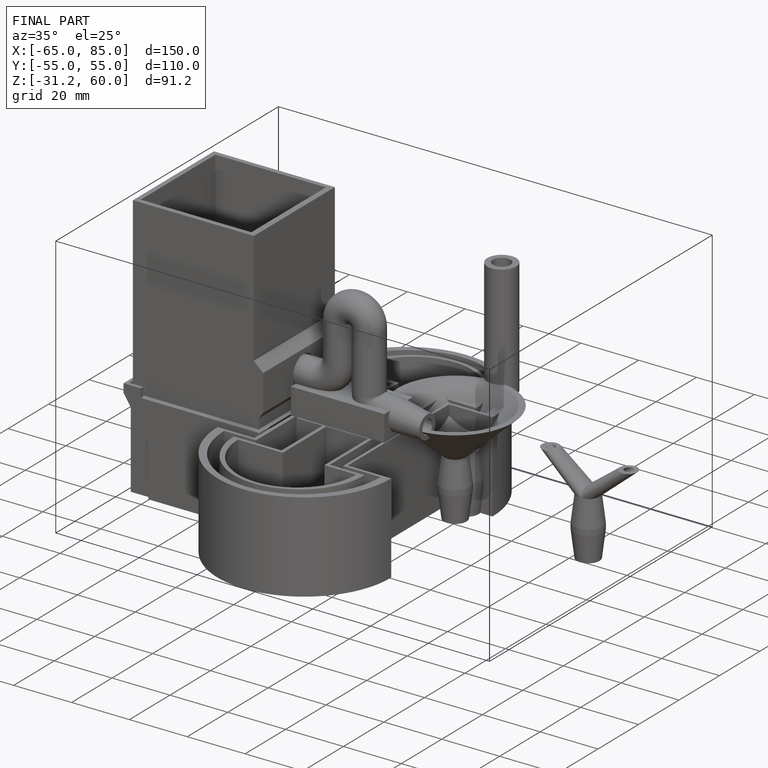
[diagram: finished part — iso view with bounding-box wireframe]
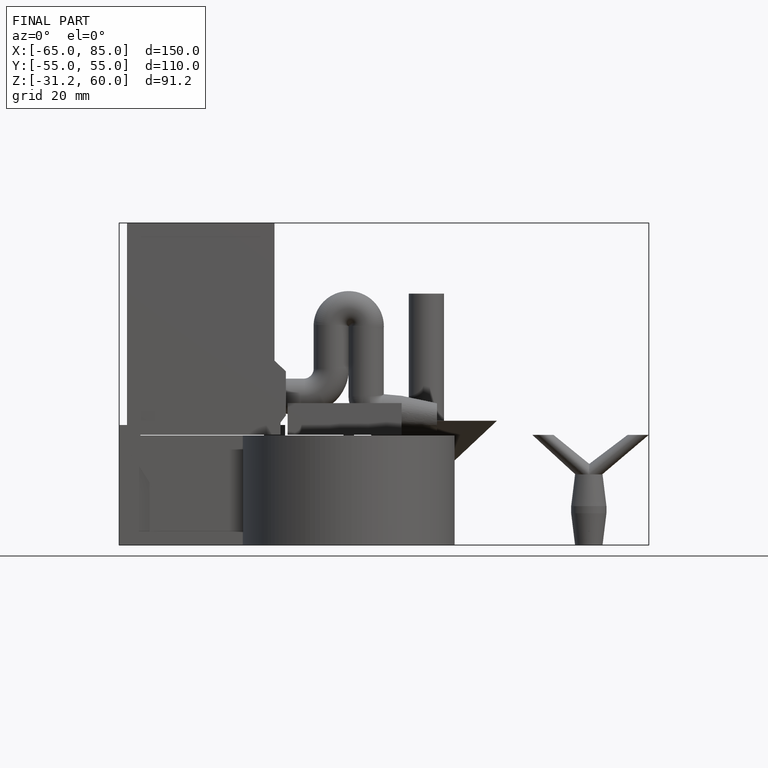
[diagram: finished part — front view with bounding-box wireframe]
